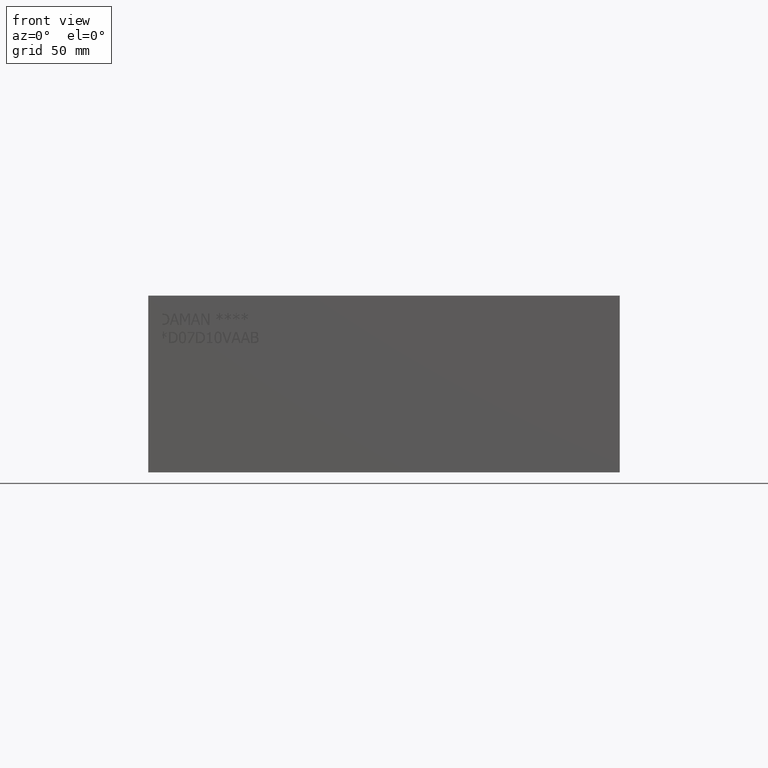
[diagram: clean part render]
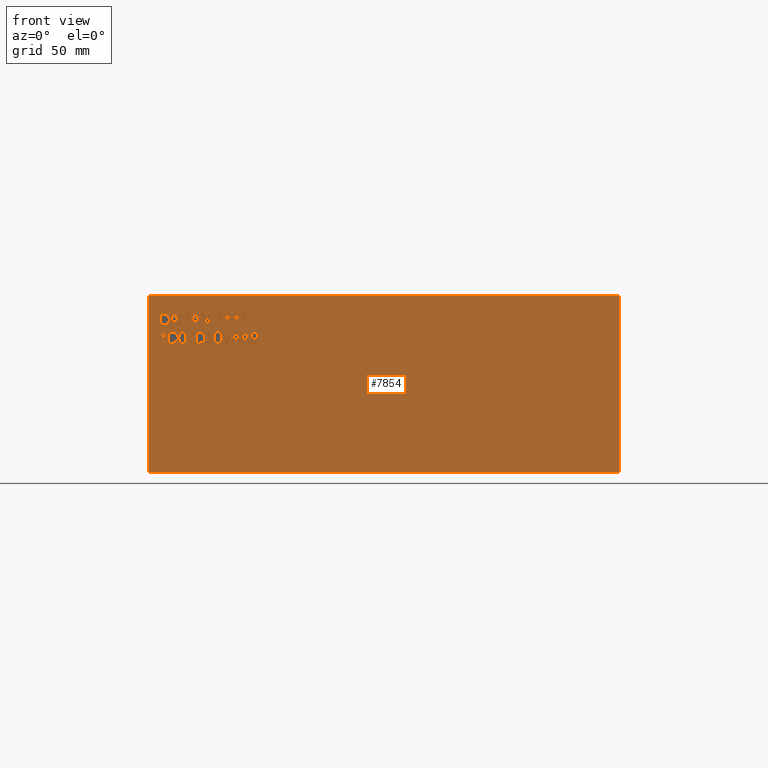
[diagram: same view with one face highlighted and labeled with its STEP entity id]
A machine part, front view. The second image highlights one B-rep face of the part: STEP entity #7854.
In plain terms, the highlighted planar face has unit normal (0, -1, 0).
Its self-contained STEP definition (entity closure, byte-faithful):
#304=FACE_BOUND('',#1140,.T.);
#305=FACE_BOUND('',#1141,.T.);
#306=FACE_BOUND('',#1142,.T.);
#307=FACE_BOUND('',#1143,.T.);
#308=FACE_BOUND('',#1144,.T.);
#309=FACE_BOUND('',#1145,.T.);
#310=FACE_BOUND('',#1146,.T.);
#311=FACE_BOUND('',#1147,.T.);
#312=FACE_BOUND('',#1148,.T.);
#313=FACE_BOUND('',#1149,.T.);
#314=FACE_BOUND('',#1150,.T.);
#315=FACE_BOUND('',#1151,.T.);
#316=FACE_BOUND('',#1152,.T.);
#317=FACE_BOUND('',#1153,.T.);
#318=FACE_BOUND('',#1154,.T.);
#319=FACE_BOUND('',#1155,.T.);
#320=FACE_BOUND('',#1156,.T.);
#321=FACE_BOUND('',#1157,.T.);
#322=FACE_BOUND('',#1158,.T.);
#395=B_SPLINE_CURVE_WITH_KNOTS('',2,(#10758,#10759,#10760,#10761),
 .UNSPECIFIED.,.F.,.F.,(3,1,3),(0.,1.,2.),.UNSPECIFIED.);
#397=B_SPLINE_CURVE_WITH_KNOTS('',2,(#10779,#10780,#10781,#10782),
 .UNSPECIFIED.,.F.,.F.,(3,1,3),(0.,1.,2.),.UNSPECIFIED.);
#399=B_SPLINE_CURVE_WITH_KNOTS('',2,(#10798,#10799,#10800,#10801),
 .UNSPECIFIED.,.F.,.F.,(3,1,3),(0.,1.,2.),.UNSPECIFIED.);
#401=B_SPLINE_CURVE_WITH_KNOTS('',2,(#10816,#10817,#10818,#10819),
 .UNSPECIFIED.,.F.,.F.,(3,1,3),(0.,1.,2.),.UNSPECIFIED.);
#419=B_SPLINE_CURVE_WITH_KNOTS('',2,(#11030,#11031,#11032,#11033),
 .UNSPECIFIED.,.F.,.F.,(3,1,3),(0.,1.,2.),.UNSPECIFIED.);
#421=B_SPLINE_CURVE_WITH_KNOTS('',2,(#11051,#11052,#11053,#11054),
 .UNSPECIFIED.,.F.,.F.,(3,1,3),(0.,1.,2.),.UNSPECIFIED.);
#423=B_SPLINE_CURVE_WITH_KNOTS('',2,(#11070,#11071,#11072,#11073),
 .UNSPECIFIED.,.F.,.F.,(3,1,3),(0.,1.,2.),.UNSPECIFIED.);
#425=B_SPLINE_CURVE_WITH_KNOTS('',2,(#11088,#11089,#11090,#11091),
 .UNSPECIFIED.,.F.,.F.,(3,1,3),(0.,1.,2.),.UNSPECIFIED.);
#435=B_SPLINE_CURVE_WITH_KNOTS('',2,(#11201,#11202,#11203,#11204),
 .UNSPECIFIED.,.F.,.F.,(3,1,3),(0.,1.,2.),.UNSPECIFIED.);
#437=B_SPLINE_CURVE_WITH_KNOTS('',2,(#11222,#11223,#11224,#11225),
 .UNSPECIFIED.,.F.,.F.,(3,1,3),(0.,1.,2.),.UNSPECIFIED.);
#439=B_SPLINE_CURVE_WITH_KNOTS('',2,(#11259,#11260,#11261,#11262),
 .UNSPECIFIED.,.F.,.F.,(3,1,3),(0.,1.,2.),.UNSPECIFIED.);
#441=B_SPLINE_CURVE_WITH_KNOTS('',2,(#11277,#11278,#11279,#11280),
 .UNSPECIFIED.,.F.,.F.,(3,1,3),(0.,1.,2.),.UNSPECIFIED.);
#451=B_SPLINE_CURVE_WITH_KNOTS('',2,(#11499,#11500,#11501,#11502),
 .UNSPECIFIED.,.F.,.F.,(3,1,3),(0.,1.,2.),.UNSPECIFIED.);
#453=B_SPLINE_CURVE_WITH_KNOTS('',2,(#11520,#11521,#11522,#11523),
 .UNSPECIFIED.,.F.,.F.,(3,1,3),(0.,1.,2.),.UNSPECIFIED.);
#455=B_SPLINE_CURVE_WITH_KNOTS('',2,(#11557,#11558,#11559,#11560),
 .UNSPECIFIED.,.F.,.F.,(3,1,3),(0.,1.,2.),.UNSPECIFIED.);
#457=B_SPLINE_CURVE_WITH_KNOTS('',2,(#11575,#11576,#11577,#11578),
 .UNSPECIFIED.,.F.,.F.,(3,1,3),(0.,1.,2.),.UNSPECIFIED.);
#459=B_SPLINE_CURVE_WITH_KNOTS('',2,(#11620,#11621,#11622,#11623),
 .UNSPECIFIED.,.F.,.F.,(3,1,3),(0.,1.,2.),.UNSPECIFIED.);
#477=B_SPLINE_CURVE_WITH_KNOTS('',2,(#11989,#11990,#11991,#11992),
 .UNSPECIFIED.,.F.,.F.,(3,1,3),(0.,1.,2.),.UNSPECIFIED.);
#479=B_SPLINE_CURVE_WITH_KNOTS('',2,(#12016,#12017,#12018,#12019),
 .UNSPECIFIED.,.F.,.F.,(3,1,3),(0.,1.,2.),.UNSPECIFIED.);
#481=B_SPLINE_CURVE_WITH_KNOTS('',2,(#12035,#12036,#12037,#12038),
 .UNSPECIFIED.,.F.,.F.,(3,1,3),(0.,1.,2.),.UNSPECIFIED.);
#483=B_SPLINE_CURVE_WITH_KNOTS('',2,(#12054,#12055,#12056,#12057),
 .UNSPECIFIED.,.F.,.F.,(3,1,3),(0.,1.,2.),.UNSPECIFIED.);
#485=B_SPLINE_CURVE_WITH_KNOTS('',2,(#12091,#12092,#12093,#12094),
 .UNSPECIFIED.,.F.,.F.,(3,1,3),(0.,1.,2.),.UNSPECIFIED.);
#487=B_SPLINE_CURVE_WITH_KNOTS('',2,(#12109,#12110,#12111,#12112),
 .UNSPECIFIED.,.F.,.F.,(3,1,3),(0.,1.,2.),.UNSPECIFIED.);
#489=B_SPLINE_CURVE_WITH_KNOTS('',2,(#12237,#12238,#12239,#12240),
 .UNSPECIFIED.,.F.,.F.,(3,1,3),(0.,1.,2.),.UNSPECIFIED.);
#490=B_SPLINE_CURVE_WITH_KNOTS('',2,(#12242,#12243,#12244,#12245),
 .UNSPECIFIED.,.F.,.F.,(3,1,3),(0.,1.,2.),.UNSPECIFIED.);
#491=B_SPLINE_CURVE_WITH_KNOTS('',2,(#12247,#12248,#12249,#12250),
 .UNSPECIFIED.,.F.,.F.,(3,1,3),(0.,1.,2.),.UNSPECIFIED.);
#492=B_SPLINE_CURVE_WITH_KNOTS('',2,(#12257,#12258,#12259,#12260),
 .UNSPECIFIED.,.F.,.F.,(3,1,3),(0.,1.,2.),.UNSPECIFIED.);
#718=FACE_OUTER_BOUND('',#1139,.T.);
#1139=EDGE_LOOP('',(#5637,#5638,#5639,#5640));
#1140=EDGE_LOOP('',(#5641,#5642,#5643,#5644,#5645,#5646,#5647));
#1141=EDGE_LOOP('',(#5648,#5649,#5650,#5651));
#1142=EDGE_LOOP('',(#5652,#5653,#5654,#5655,#5656,#5657,#5658));
#1143=EDGE_LOOP('',(#5659,#5660,#5661,#5662));
#1144=EDGE_LOOP('',(#5663,#5664,#5665,#5666,#5667,#5668,#5669));
#1145=EDGE_LOOP('',(#5670,#5671,#5672,#5673,#5674,#5675,#5676,#5677,#5678,
#5679,#5680,#5681,#5682,#5683,#5684,#5685,#5686,#5687));
#1146=EDGE_LOOP('',(#5688,#5689,#5690,#5691,#5692,#5693,#5694));
#1147=EDGE_LOOP('',(#5695,#5696,#5697,#5698,#5699,#5700,#5701,#5702,#5703,
#5704,#5705));
#1148=EDGE_LOOP('',(#5706,#5707,#5708,#5709,#5710,#5711,#5712,#5713,#5714,
#5715,#5716,#5717,#5718,#5719,#5720));
#1149=EDGE_LOOP('',(#5721,#5722,#5723,#5724,#5725,#5726,#5727,#5728,#5729,
#5730));
#1150=EDGE_LOOP('',(#5731,#5732,#5733,#5734,#5735,#5736,#5737,#5738,#5739,
#5740,#5741,#5742,#5743,#5744,#5745,#5746,#5747,#5748));
#1151=EDGE_LOOP('',(#5749,#5750,#5751,#5752,#5753,#5754,#5755,#5756,#5757,
#5758,#5759,#5760,#5761,#5762,#5763,#5764,#5765,#5766));
#1152=EDGE_LOOP('',(#5767,#5768,#5769,#5770,#5771,#5772,#5773,#5774,#5775,
#5776));
#1153=EDGE_LOOP('',(#5777,#5778,#5779,#5780,#5781,#5782,#5783,#5784));
#1154=EDGE_LOOP('',(#5785,#5786,#5787,#5788,#5789,#5790,#5791));
#1155=EDGE_LOOP('',(#5792,#5793,#5794,#5795,#5796,#5797,#5798,#5799));
#1156=EDGE_LOOP('',(#5800,#5801,#5802,#5803,#5804,#5805,#5806,#5807,#5808,
#5809,#5810,#5811,#5812));
#1157=EDGE_LOOP('',(#5813,#5814,#5815,#5816,#5817,#5818,#5819,#5820,#5821,
#5822,#5823,#5824,#5825,#5826,#5827,#5828,#5829,#5830));
#1158=EDGE_LOOP('',(#5831,#5832,#5833,#5834,#5835,#5836,#5837,#5838,#5839,
#5840,#5841,#5842,#5843,#5844,#5845,#5846,#5847,#5848));
#1477=LINE('',#10556,#2264);
#1481=LINE('',#10564,#2268);
#1484=LINE('',#10570,#2271);
#1487=LINE('',#10576,#2274);
#1490=LINE('',#10582,#2277);
#1493=LINE('',#10588,#2280);
#1496=LINE('',#10593,#2283);
#1510=LINE('',#10828,#2297);
#1514=LINE('',#10836,#2301);
#1517=LINE('',#10842,#2304);
#1520=LINE('',#10848,#2307);
#1523=LINE('',#10854,#2310);
#1526=LINE('',#10860,#2313);
#1529=LINE('',#10865,#2316);
#1559=LINE('',#11234,#2346);
#1562=LINE('',#11240,#2349);
#1565=LINE('',#11246,#2352);
#1569=LINE('',#11289,#2356);
#1573=LINE('',#11297,#2360);
#1576=LINE('',#11303,#2363);
#1579=LINE('',#11309,#2366);
#1582=LINE('',#11315,#2369);
#1585=LINE('',#11321,#2372);
#1588=LINE('',#11327,#2375);
#1591=LINE('',#11333,#2378);
#1594=LINE('',#11339,#2381);
#1597=LINE('',#11345,#2384);
#1600=LINE('',#11351,#2387);
#1603=LINE('',#11357,#2390);
#1606=LINE('',#11363,#2393);
#1609=LINE('',#11369,#2396);
#1612=LINE('',#11375,#2399);
#1615=LINE('',#11381,#2402);
#1618=LINE('',#11387,#2405);
#1621=LINE('',#11392,#2408);
#1639=LINE('',#11532,#2426);
#1642=LINE('',#11538,#2429);
#1645=LINE('',#11544,#2432);
#1649=LINE('',#11587,#2436);
#1653=LINE('',#11595,#2440);
#1656=LINE('',#11601,#2443);
#1659=LINE('',#11607,#2446);
#1663=LINE('',#11632,#2450);
#1666=LINE('',#11638,#2453);
#1669=LINE('',#11644,#2456);
#1672=LINE('',#11650,#2459);
#1675=LINE('',#11656,#2462);
#1678=LINE('',#11661,#2465);
#1692=LINE('',#11690,#2479);
#1693=LINE('',#11694,#2480);
#1697=LINE('',#11702,#2484);
#1700=LINE('',#11708,#2487);
#1703=LINE('',#11714,#2490);
#1706=LINE('',#11720,#2493);
#1709=LINE('',#11725,#2496);
#1711=LINE('',#11729,#2498);
#1723=LINE('',#11754,#2510);
#1727=LINE('',#11762,#2514);
#1730=LINE('',#11768,#2517);
#1733=LINE('',#11773,#2520);
#1735=LINE('',#11777,#2522);
#1738=LINE('',#11783,#2525);
#1741=LINE('',#11788,#2528);
#1771=LINE('',#12003,#2558);
#1777=LINE('',#12066,#2564);
#1780=LINE('',#12072,#2567);
#1783=LINE('',#12078,#2570);
#1787=LINE('',#12121,#2574);
#1788=LINE('',#12123,#2575);
#1789=LINE('',#12125,#2576);
#1790=LINE('',#12126,#2577);
#1791=LINE('',#12129,#2578);
#1792=LINE('',#12131,#2579);
#1793=LINE('',#12133,#2580);
#1794=LINE('',#12135,#2581);
#1795=LINE('',#12137,#2582);
#1796=LINE('',#12139,#2583);
#1797=LINE('',#12141,#2584);
#1798=LINE('',#12143,#2585);
#1799=LINE('',#12145,#2586);
#1800=LINE('',#12147,#2587);
#1801=LINE('',#12149,#2588);
#1802=LINE('',#12151,#2589);
#1803=LINE('',#12153,#2590);
#1804=LINE('',#12155,#2591);
#1805=LINE('',#12157,#2592);
#1806=LINE('',#12159,#2593);
#1807=LINE('',#12161,#2594);
#1808=LINE('',#12162,#2595);
#1809=LINE('',#12165,#2596);
#1810=LINE('',#12167,#2597);
#1811=LINE('',#12169,#2598);
#1812=LINE('',#12171,#2599);
#1813=LINE('',#12173,#2600);
#1814=LINE('',#12175,#2601);
#1815=LINE('',#12177,#2602);
#1816=LINE('',#12179,#2603);
#1817=LINE('',#12181,#2604);
#1818=LINE('',#12183,#2605);
#1819=LINE('',#12185,#2606);
#1820=LINE('',#12187,#2607);
#1821=LINE('',#12189,#2608);
#1822=LINE('',#12191,#2609);
#1823=LINE('',#12193,#2610);
#1824=LINE('',#12195,#2611);
#1825=LINE('',#12197,#2612);
#1826=LINE('',#12198,#2613);
#1827=LINE('',#12201,#2614);
#1828=LINE('',#12203,#2615);
#1829=LINE('',#12205,#2616);
#1830=LINE('',#12207,#2617);
#1831=LINE('',#12209,#2618);
#1832=LINE('',#12211,#2619);
#1833=LINE('',#12213,#2620);
#1834=LINE('',#12215,#2621);
#1835=LINE('',#12217,#2622);
#1836=LINE('',#12218,#2623);
#1837=LINE('',#12221,#2624);
#1838=LINE('',#12223,#2625);
#1839=LINE('',#12225,#2626);
#1840=LINE('',#12227,#2627);
#1841=LINE('',#12229,#2628);
#1842=LINE('',#12231,#2629);
#1843=LINE('',#12233,#2630);
#1844=LINE('',#12234,#2631);
#1845=LINE('',#12252,#2632);
#1846=LINE('',#12254,#2633);
#1847=LINE('',#12256,#2634);
#1848=LINE('',#12263,#2635);
#1849=LINE('',#12265,#2636);
#1850=LINE('',#12267,#2637);
#1851=LINE('',#12269,#2638);
#1852=LINE('',#12271,#2639);
#1853=LINE('',#12273,#2640);
#1854=LINE('',#12275,#2641);
#1855=LINE('',#12276,#2642);
#1856=LINE('',#12279,#2643);
#1857=LINE('',#12281,#2644);
#1858=LINE('',#12283,#2645);
#1859=LINE('',#12285,#2646);
#1860=LINE('',#12287,#2647);
#1861=LINE('',#12289,#2648);
#1862=LINE('',#12291,#2649);
#1863=LINE('',#12293,#2650);
#1864=LINE('',#12295,#2651);
#1865=LINE('',#12297,#2652);
#1866=LINE('',#12299,#2653);
#1867=LINE('',#12301,#2654);
#1868=LINE('',#12302,#2655);
#1869=LINE('',#12305,#2656);
#1870=LINE('',#12307,#2657);
#1871=LINE('',#12309,#2658);
#1872=LINE('',#12311,#2659);
#1873=LINE('',#12313,#2660);
#1874=LINE('',#12315,#2661);
#1875=LINE('',#12317,#2662);
#1876=LINE('',#12319,#2663);
#1877=LINE('',#12321,#2664);
#1878=LINE('',#12323,#2665);
#1879=LINE('',#12325,#2666);
#1880=LINE('',#12327,#2667);
#1881=LINE('',#12329,#2668);
#1882=LINE('',#12331,#2669);
#1883=LINE('',#12333,#2670);
#1884=LINE('',#12335,#2671);
#1885=LINE('',#12337,#2672);
#1886=LINE('',#12338,#2673);
#1887=LINE('',#12341,#2674);
#1888=LINE('',#12343,#2675);
#1889=LINE('',#12345,#2676);
#1890=LINE('',#12347,#2677);
#1891=LINE('',#12349,#2678);
#1892=LINE('',#12351,#2679);
#1893=LINE('',#12353,#2680);
#1894=LINE('',#12355,#2681);
#1895=LINE('',#12357,#2682);
#1896=LINE('',#12359,#2683);
#1897=LINE('',#12361,#2684);
#1898=LINE('',#12363,#2685);
#1899=LINE('',#12365,#2686);
#1900=LINE('',#12367,#2687);
#1901=LINE('',#12369,#2688);
#1902=LINE('',#12371,#2689);
#1903=LINE('',#12373,#2690);
#1904=LINE('',#12374,#2691);
#2264=VECTOR('',#8679,10.);
#2268=VECTOR('',#8685,10.);
#2271=VECTOR('',#8690,10.);
#2274=VECTOR('',#8695,10.);
#2277=VECTOR('',#8700,10.);
#2280=VECTOR('',#8705,10.);
#2283=VECTOR('',#8710,10.);
#2297=VECTOR('',#8730,10.);
#2301=VECTOR('',#8736,10.);
#2304=VECTOR('',#8741,10.);
#2307=VECTOR('',#8746,10.);
#2310=VECTOR('',#8751,10.);
#2313=VECTOR('',#8756,10.);
#2316=VECTOR('',#8761,10.);
#2346=VECTOR('',#8803,10.);
#2349=VECTOR('',#8808,10.);
#2352=VECTOR('',#8813,10.);
#2356=VECTOR('',#8821,10.);
#2360=VECTOR('',#8827,10.);
#2363=VECTOR('',#8832,10.);
#2366=VECTOR('',#8837,10.);
#2369=VECTOR('',#8842,10.);
#2372=VECTOR('',#8847,10.);
#2375=VECTOR('',#8852,10.);
#2378=VECTOR('',#8857,10.);
#2381=VECTOR('',#8862,10.);
#2384=VECTOR('',#8867,10.);
#2387=VECTOR('',#8872,10.);
#2390=VECTOR('',#8877,10.);
#2393=VECTOR('',#8882,10.);
#2396=VECTOR('',#8887,10.);
#2399=VECTOR('',#8892,10.);
#2402=VECTOR('',#8897,10.);
#2405=VECTOR('',#8902,10.);
#2408=VECTOR('',#8907,10.);
#2426=VECTOR('',#8935,10.);
#2429=VECTOR('',#8940,10.);
#2432=VECTOR('',#8945,10.);
#2436=VECTOR('',#8953,10.);
#2440=VECTOR('',#8959,10.);
#2443=VECTOR('',#8964,10.);
#2446=VECTOR('',#8969,10.);
#2450=VECTOR('',#8975,10.);
#2453=VECTOR('',#8980,10.);
#2456=VECTOR('',#8985,10.);
#2459=VECTOR('',#8990,10.);
#2462=VECTOR('',#8995,10.);
#2465=VECTOR('',#9000,10.);
#2479=VECTOR('',#9024,10.);
#2480=VECTOR('',#9027,10.);
#2484=VECTOR('',#9033,10.);
#2487=VECTOR('',#9038,10.);
#2490=VECTOR('',#9043,10.);
#2493=VECTOR('',#9048,10.);
#2496=VECTOR('',#9053,10.);
#2498=VECTOR('',#9057,10.);
#2510=VECTOR('',#9077,10.);
#2514=VECTOR('',#9083,10.);
#2517=VECTOR('',#9088,10.);
#2520=VECTOR('',#9093,10.);
#2522=VECTOR('',#9097,10.);
#2525=VECTOR('',#9102,10.);
#2528=VECTOR('',#9107,10.);
#2558=VECTOR('',#9153,10.);
#2564=VECTOR('',#9161,10.);
#2567=VECTOR('',#9166,10.);
#2570=VECTOR('',#9171,10.);
#2574=VECTOR('',#9179,10.);
#2575=VECTOR('',#9180,10.);
#2576=VECTOR('',#9181,10.);
#2577=VECTOR('',#9182,10.);
#2578=VECTOR('',#9183,10.);
#2579=VECTOR('',#9184,10.);
#2580=VECTOR('',#9185,10.);
#2581=VECTOR('',#9186,10.);
#2582=VECTOR('',#9187,10.);
#2583=VECTOR('',#9188,10.);
#2584=VECTOR('',#9189,10.);
#2585=VECTOR('',#9190,10.);
#2586=VECTOR('',#9191,10.);
#2587=VECTOR('',#9192,10.);
#2588=VECTOR('',#9193,10.);
#2589=VECTOR('',#9194,10.);
#2590=VECTOR('',#9195,10.);
#2591=VECTOR('',#9196,10.);
#2592=VECTOR('',#9197,10.);
#2593=VECTOR('',#9198,10.);
#2594=VECTOR('',#9199,10.);
#2595=VECTOR('',#9200,10.);
#2596=VECTOR('',#9201,10.);
#2597=VECTOR('',#9202,10.);
#2598=VECTOR('',#9203,10.);
#2599=VECTOR('',#9204,10.);
#2600=VECTOR('',#9205,10.);
#2601=VECTOR('',#9206,10.);
#2602=VECTOR('',#9207,10.);
#2603=VECTOR('',#9208,10.);
#2604=VECTOR('',#9209,10.);
#2605=VECTOR('',#9210,10.);
#2606=VECTOR('',#9211,10.);
#2607=VECTOR('',#9212,10.);
#2608=VECTOR('',#9213,10.);
#2609=VECTOR('',#9214,10.);
#2610=VECTOR('',#9215,10.);
#2611=VECTOR('',#9216,10.);
#2612=VECTOR('',#9217,10.);
#2613=VECTOR('',#9218,10.);
#2614=VECTOR('',#9219,10.);
#2615=VECTOR('',#9220,10.);
#2616=VECTOR('',#9221,10.);
#2617=VECTOR('',#9222,10.);
#2618=VECTOR('',#9223,10.);
#2619=VECTOR('',#9224,10.);
#2620=VECTOR('',#9225,10.);
#2621=VECTOR('',#9226,10.);
#2622=VECTOR('',#9227,10.);
#2623=VECTOR('',#9228,10.);
#2624=VECTOR('',#9229,10.);
#2625=VECTOR('',#9230,10.);
#2626=VECTOR('',#9231,10.);
#2627=VECTOR('',#9232,10.);
#2628=VECTOR('',#9233,10.);
#2629=VECTOR('',#9234,10.);
#2630=VECTOR('',#9235,10.);
#2631=VECTOR('',#9236,10.);
#2632=VECTOR('',#9237,10.);
#2633=VECTOR('',#9238,10.);
#2634=VECTOR('',#9239,10.);
#2635=VECTOR('',#9240,10.);
#2636=VECTOR('',#9241,10.);
#2637=VECTOR('',#9242,10.);
#2638=VECTOR('',#9243,10.);
#2639=VECTOR('',#9244,10.);
#2640=VECTOR('',#9245,10.);
#2641=VECTOR('',#9246,10.);
#2642=VECTOR('',#9247,10.);
#2643=VECTOR('',#9248,10.);
#2644=VECTOR('',#9249,10.);
#2645=VECTOR('',#9250,10.);
#2646=VECTOR('',#9251,10.);
#2647=VECTOR('',#9252,10.);
#2648=VECTOR('',#9253,10.);
#2649=VECTOR('',#9254,10.);
#2650=VECTOR('',#9255,10.);
#2651=VECTOR('',#9256,10.);
#2652=VECTOR('',#9257,10.);
#2653=VECTOR('',#9258,10.);
#2654=VECTOR('',#9259,10.);
#2655=VECTOR('',#9260,10.);
#2656=VECTOR('',#9261,10.);
#2657=VECTOR('',#9262,10.);
#2658=VECTOR('',#9263,10.);
#2659=VECTOR('',#9264,10.);
#2660=VECTOR('',#9265,10.);
#2661=VECTOR('',#9266,10.);
#2662=VECTOR('',#9267,10.);
#2663=VECTOR('',#9268,10.);
#2664=VECTOR('',#9269,10.);
#2665=VECTOR('',#9270,10.);
#2666=VECTOR('',#9271,10.);
#2667=VECTOR('',#9272,10.);
#2668=VECTOR('',#9273,10.);
#2669=VECTOR('',#9274,10.);
#2670=VECTOR('',#9275,10.);
#2671=VECTOR('',#9276,10.);
#2672=VECTOR('',#9277,10.);
#2673=VECTOR('',#9278,10.);
#2674=VECTOR('',#9279,10.);
#2675=VECTOR('',#9280,10.);
#2676=VECTOR('',#9281,10.);
#2677=VECTOR('',#9282,10.);
#2678=VECTOR('',#9283,10.);
#2679=VECTOR('',#9284,10.);
#2680=VECTOR('',#9285,10.);
#2681=VECTOR('',#9286,10.);
#2682=VECTOR('',#9287,10.);
#2683=VECTOR('',#9288,10.);
#2684=VECTOR('',#9289,10.);
#2685=VECTOR('',#9290,10.);
#2686=VECTOR('',#9291,10.);
#2687=VECTOR('',#9292,10.);
#2688=VECTOR('',#9293,10.);
#2689=VECTOR('',#9294,10.);
#2690=VECTOR('',#9295,10.);
#2691=VECTOR('',#9296,10.);
#3051=VERTEX_POINT('',#10554);
#3052=VERTEX_POINT('',#10555);
#3055=VERTEX_POINT('',#10563);
#3057=VERTEX_POINT('',#10569);
#3059=VERTEX_POINT('',#10575);
#3061=VERTEX_POINT('',#10581);
#3063=VERTEX_POINT('',#10587);
#3081=VERTEX_POINT('',#10756);
#3082=VERTEX_POINT('',#10757);
#3085=VERTEX_POINT('',#10778);
#3087=VERTEX_POINT('',#10797);
#3089=VERTEX_POINT('',#10826);
#3090=VERTEX_POINT('',#10827);
#3093=VERTEX_POINT('',#10835);
#3095=VERTEX_POINT('',#10841);
#3097=VERTEX_POINT('',#10847);
#3099=VERTEX_POINT('',#10853);
#3101=VERTEX_POINT('',#10859);
#3119=VERTEX_POINT('',#11028);
#3120=VERTEX_POINT('',#11029);
#3123=VERTEX_POINT('',#11050);
#3125=VERTEX_POINT('',#11069);
#3141=VERTEX_POINT('',#11199);
#3142=VERTEX_POINT('',#11200);
#3145=VERTEX_POINT('',#11221);
#3147=VERTEX_POINT('',#11233);
#3149=VERTEX_POINT('',#11239);
#3151=VERTEX_POINT('',#11245);
#3153=VERTEX_POINT('',#11258);
#3155=VERTEX_POINT('',#11287);
#3156=VERTEX_POINT('',#11288);
#3159=VERTEX_POINT('',#11296);
#3161=VERTEX_POINT('',#11302);
#3163=VERTEX_POINT('',#11308);
#3165=VERTEX_POINT('',#11314);
#3167=VERTEX_POINT('',#11320);
#3169=VERTEX_POINT('',#11326);
#3171=VERTEX_POINT('',#11332);
#3173=VERTEX_POINT('',#11338);
#3175=VERTEX_POINT('',#11344);
#3177=VERTEX_POINT('',#11350);
#3179=VERTEX_POINT('',#11356);
#3181=VERTEX_POINT('',#11362);
#3183=VERTEX_POINT('',#11368);
#3185=VERTEX_POINT('',#11374);
#3187=VERTEX_POINT('',#11380);
#3189=VERTEX_POINT('',#11386);
#3205=VERTEX_POINT('',#11497);
#3206=VERTEX_POINT('',#11498);
#3209=VERTEX_POINT('',#11519);
#3211=VERTEX_POINT('',#11531);
#3213=VERTEX_POINT('',#11537);
#3215=VERTEX_POINT('',#11543);
#3217=VERTEX_POINT('',#11556);
#3219=VERTEX_POINT('',#11585);
#3220=VERTEX_POINT('',#11586);
#3223=VERTEX_POINT('',#11594);
#3225=VERTEX_POINT('',#11600);
#3227=VERTEX_POINT('',#11606);
#3229=VERTEX_POINT('',#11619);
#3231=VERTEX_POINT('',#11631);
#3233=VERTEX_POINT('',#11637);
#3235=VERTEX_POINT('',#11643);
#3237=VERTEX_POINT('',#11649);
#3239=VERTEX_POINT('',#11655);
#3247=VERTEX_POINT('',#11683);
#3250=VERTEX_POINT('',#11688);
#3251=VERTEX_POINT('',#11692);
#3252=VERTEX_POINT('',#11693);
#3255=VERTEX_POINT('',#11701);
#3257=VERTEX_POINT('',#11707);
#3259=VERTEX_POINT('',#11713);
#3261=VERTEX_POINT('',#11719);
#3263=VERTEX_POINT('',#11728);
#3271=VERTEX_POINT('',#11752);
#3272=VERTEX_POINT('',#11753);
#3275=VERTEX_POINT('',#11761);
#3277=VERTEX_POINT('',#11767);
#3279=VERTEX_POINT('',#11776);
#3281=VERTEX_POINT('',#11782);
#3311=VERTEX_POINT('',#11987);
#3312=VERTEX_POINT('',#11988);
#3315=VERTEX_POINT('',#12002);
#3317=VERTEX_POINT('',#12015);
#3319=VERTEX_POINT('',#12034);
#3321=VERTEX_POINT('',#12053);
#3323=VERTEX_POINT('',#12065);
#3325=VERTEX_POINT('',#12071);
#3327=VERTEX_POINT('',#12077);
#3329=VERTEX_POINT('',#12090);
#3331=VERTEX_POINT('',#12119);
#3332=VERTEX_POINT('',#12120);
#3333=VERTEX_POINT('',#12122);
#3334=VERTEX_POINT('',#12124);
#3335=VERTEX_POINT('',#12127);
#3336=VERTEX_POINT('',#12128);
#3337=VERTEX_POINT('',#12130);
#3338=VERTEX_POINT('',#12132);
#3339=VERTEX_POINT('',#12134);
#3340=VERTEX_POINT('',#12136);
#3341=VERTEX_POINT('',#12138);
#3342=VERTEX_POINT('',#12140);
#3343=VERTEX_POINT('',#12142);
#3344=VERTEX_POINT('',#12144);
#3345=VERTEX_POINT('',#12146);
#3346=VERTEX_POINT('',#12148);
#3347=VERTEX_POINT('',#12150);
#3348=VERTEX_POINT('',#12152);
#3349=VERTEX_POINT('',#12154);
#3350=VERTEX_POINT('',#12156);
#3351=VERTEX_POINT('',#12158);
#3352=VERTEX_POINT('',#12160);
#3353=VERTEX_POINT('',#12163);
#3354=VERTEX_POINT('',#12164);
#3355=VERTEX_POINT('',#12166);
#3356=VERTEX_POINT('',#12168);
#3357=VERTEX_POINT('',#12170);
#3358=VERTEX_POINT('',#12172);
#3359=VERTEX_POINT('',#12174);
#3360=VERTEX_POINT('',#12176);
#3361=VERTEX_POINT('',#12178);
#3362=VERTEX_POINT('',#12180);
#3363=VERTEX_POINT('',#12182);
#3364=VERTEX_POINT('',#12184);
#3365=VERTEX_POINT('',#12186);
#3366=VERTEX_POINT('',#12188);
#3367=VERTEX_POINT('',#12190);
#3368=VERTEX_POINT('',#12192);
#3369=VERTEX_POINT('',#12194);
#3370=VERTEX_POINT('',#12196);
#3371=VERTEX_POINT('',#12199);
#3372=VERTEX_POINT('',#12200);
#3373=VERTEX_POINT('',#12202);
#3374=VERTEX_POINT('',#12204);
#3375=VERTEX_POINT('',#12206);
#3376=VERTEX_POINT('',#12208);
#3377=VERTEX_POINT('',#12210);
#3378=VERTEX_POINT('',#12212);
#3379=VERTEX_POINT('',#12214);
#3380=VERTEX_POINT('',#12216);
#3381=VERTEX_POINT('',#12219);
#3382=VERTEX_POINT('',#12220);
#3383=VERTEX_POINT('',#12222);
#3384=VERTEX_POINT('',#12224);
#3385=VERTEX_POINT('',#12226);
#3386=VERTEX_POINT('',#12228);
#3387=VERTEX_POINT('',#12230);
#3388=VERTEX_POINT('',#12232);
#3389=VERTEX_POINT('',#12235);
#3390=VERTEX_POINT('',#12236);
#3391=VERTEX_POINT('',#12241);
#3392=VERTEX_POINT('',#12246);
#3393=VERTEX_POINT('',#12251);
#3394=VERTEX_POINT('',#12253);
#3395=VERTEX_POINT('',#12255);
#3396=VERTEX_POINT('',#12261);
#3397=VERTEX_POINT('',#12262);
#3398=VERTEX_POINT('',#12264);
#3399=VERTEX_POINT('',#12266);
#3400=VERTEX_POINT('',#12268);
#3401=VERTEX_POINT('',#12270);
#3402=VERTEX_POINT('',#12272);
#3403=VERTEX_POINT('',#12274);
#3404=VERTEX_POINT('',#12277);
#3405=VERTEX_POINT('',#12278);
#3406=VERTEX_POINT('',#12280);
#3407=VERTEX_POINT('',#12282);
#3408=VERTEX_POINT('',#12284);
#3409=VERTEX_POINT('',#12286);
#3410=VERTEX_POINT('',#12288);
#3411=VERTEX_POINT('',#12290);
#3412=VERTEX_POINT('',#12292);
#3413=VERTEX_POINT('',#12294);
#3414=VERTEX_POINT('',#12296);
#3415=VERTEX_POINT('',#12298);
#3416=VERTEX_POINT('',#12300);
#3417=VERTEX_POINT('',#12303);
#3418=VERTEX_POINT('',#12304);
#3419=VERTEX_POINT('',#12306);
#3420=VERTEX_POINT('',#12308);
#3421=VERTEX_POINT('',#12310);
#3422=VERTEX_POINT('',#12312);
#3423=VERTEX_POINT('',#12314);
#3424=VERTEX_POINT('',#12316);
#3425=VERTEX_POINT('',#12318);
#3426=VERTEX_POINT('',#12320);
#3427=VERTEX_POINT('',#12322);
#3428=VERTEX_POINT('',#12324);
#3429=VERTEX_POINT('',#12326);
#3430=VERTEX_POINT('',#12328);
#3431=VERTEX_POINT('',#12330);
#3432=VERTEX_POINT('',#12332);
#3433=VERTEX_POINT('',#12334);
#3434=VERTEX_POINT('',#12336);
#3435=VERTEX_POINT('',#12339);
#3436=VERTEX_POINT('',#12340);
#3437=VERTEX_POINT('',#12342);
#3438=VERTEX_POINT('',#12344);
#3439=VERTEX_POINT('',#12346);
#3440=VERTEX_POINT('',#12348);
#3441=VERTEX_POINT('',#12350);
#3442=VERTEX_POINT('',#12352);
#3443=VERTEX_POINT('',#12354);
#3444=VERTEX_POINT('',#12356);
#3445=VERTEX_POINT('',#12358);
#3446=VERTEX_POINT('',#12360);
#3447=VERTEX_POINT('',#12362);
#3448=VERTEX_POINT('',#12364);
#3449=VERTEX_POINT('',#12366);
#3450=VERTEX_POINT('',#12368);
#3451=VERTEX_POINT('',#12370);
#3452=VERTEX_POINT('',#12372);
#3830=EDGE_CURVE('',#3051,#3052,#1477,.T.);
#3834=EDGE_CURVE('',#3055,#3051,#1481,.T.);
#3837=EDGE_CURVE('',#3057,#3055,#1484,.T.);
#3840=EDGE_CURVE('',#3059,#3057,#1487,.T.);
#3843=EDGE_CURVE('',#3061,#3059,#1490,.T.);
#3846=EDGE_CURVE('',#3063,#3061,#1493,.T.);
#3849=EDGE_CURVE('',#3052,#3063,#1496,.T.);
#3875=EDGE_CURVE('',#3081,#3082,#395,.T.);
#3879=EDGE_CURVE('',#3085,#3081,#397,.T.);
#3882=EDGE_CURVE('',#3087,#3085,#399,.T.);
#3885=EDGE_CURVE('',#3082,#3087,#401,.T.);
#3887=EDGE_CURVE('',#3089,#3090,#1510,.T.);
#3891=EDGE_CURVE('',#3093,#3089,#1514,.T.);
#3894=EDGE_CURVE('',#3095,#3093,#1517,.T.);
#3897=EDGE_CURVE('',#3097,#3095,#1520,.T.);
#3900=EDGE_CURVE('',#3099,#3097,#1523,.T.);
#3903=EDGE_CURVE('',#3101,#3099,#1526,.T.);
#3906=EDGE_CURVE('',#3090,#3101,#1529,.T.);
#3932=EDGE_CURVE('',#3119,#3120,#419,.T.);
#3936=EDGE_CURVE('',#3123,#3119,#421,.T.);
#3939=EDGE_CURVE('',#3125,#3123,#423,.T.);
#3942=EDGE_CURVE('',#3120,#3125,#425,.T.);
#3965=EDGE_CURVE('',#3141,#3142,#435,.T.);
#3969=EDGE_CURVE('',#3145,#3141,#437,.T.);
#3972=EDGE_CURVE('',#3147,#3145,#1559,.T.);
#3975=EDGE_CURVE('',#3149,#3147,#1562,.T.);
#3978=EDGE_CURVE('',#3151,#3149,#1565,.T.);
#3981=EDGE_CURVE('',#3153,#3151,#439,.T.);
#3984=EDGE_CURVE('',#3142,#3153,#441,.T.);
#3986=EDGE_CURVE('',#3155,#3156,#1569,.T.);
#3990=EDGE_CURVE('',#3159,#3155,#1573,.T.);
#3993=EDGE_CURVE('',#3161,#3159,#1576,.T.);
#3996=EDGE_CURVE('',#3163,#3161,#1579,.T.);
#3999=EDGE_CURVE('',#3165,#3163,#1582,.T.);
#4002=EDGE_CURVE('',#3167,#3165,#1585,.T.);
#4005=EDGE_CURVE('',#3169,#3167,#1588,.T.);
#4008=EDGE_CURVE('',#3171,#3169,#1591,.T.);
#4011=EDGE_CURVE('',#3173,#3171,#1594,.T.);
#4014=EDGE_CURVE('',#3175,#3173,#1597,.T.);
#4017=EDGE_CURVE('',#3177,#3175,#1600,.T.);
#4020=EDGE_CURVE('',#3179,#3177,#1603,.T.);
#4023=EDGE_CURVE('',#3181,#3179,#1606,.T.);
#4026=EDGE_CURVE('',#3183,#3181,#1609,.T.);
#4029=EDGE_CURVE('',#3185,#3183,#1612,.T.);
#4032=EDGE_CURVE('',#3187,#3185,#1615,.T.);
#4035=EDGE_CURVE('',#3189,#3187,#1618,.T.);
#4038=EDGE_CURVE('',#3156,#3189,#1621,.T.);
#4061=EDGE_CURVE('',#3205,#3206,#451,.T.);
#4065=EDGE_CURVE('',#3209,#3205,#453,.T.);
#4068=EDGE_CURVE('',#3211,#3209,#1639,.T.);
#4071=EDGE_CURVE('',#3213,#3211,#1642,.T.);
#4074=EDGE_CURVE('',#3215,#3213,#1645,.T.);
#4077=EDGE_CURVE('',#3217,#3215,#455,.T.);
#4080=EDGE_CURVE('',#3206,#3217,#457,.T.);
#4082=EDGE_CURVE('',#3219,#3220,#1649,.T.);
#4086=EDGE_CURVE('',#3223,#3219,#1653,.T.);
#4089=EDGE_CURVE('',#3225,#3223,#1656,.T.);
#4092=EDGE_CURVE('',#3227,#3225,#1659,.T.);
#4095=EDGE_CURVE('',#3229,#3227,#459,.T.);
#4098=EDGE_CURVE('',#3231,#3229,#1663,.T.);
#4101=EDGE_CURVE('',#3233,#3231,#1666,.T.);
#4104=EDGE_CURVE('',#3235,#3233,#1669,.T.);
#4107=EDGE_CURVE('',#3237,#3235,#1672,.T.);
#4110=EDGE_CURVE('',#3239,#3237,#1675,.T.);
#4113=EDGE_CURVE('',#3220,#3239,#1678,.T.);
#4127=EDGE_CURVE('',#3247,#3250,#1692,.T.);
#4128=EDGE_CURVE('',#3251,#3252,#1693,.T.);
#4132=EDGE_CURVE('',#3255,#3251,#1697,.T.);
#4135=EDGE_CURVE('',#3257,#3255,#1700,.T.);
#4138=EDGE_CURVE('',#3259,#3257,#1703,.T.);
#4141=EDGE_CURVE('',#3261,#3259,#1706,.T.);
#4144=EDGE_CURVE('',#3250,#3261,#1709,.T.);
#4146=EDGE_CURVE('',#3252,#3263,#1711,.T.);
#4158=EDGE_CURVE('',#3271,#3272,#1723,.T.);
#4162=EDGE_CURVE('',#3275,#3271,#1727,.T.);
#4165=EDGE_CURVE('',#3277,#3275,#1730,.T.);
#4168=EDGE_CURVE('',#3263,#3277,#1733,.T.);
#4170=EDGE_CURVE('',#3279,#3247,#1735,.T.);
#4173=EDGE_CURVE('',#3281,#3279,#1738,.T.);
#4176=EDGE_CURVE('',#3272,#3281,#1741,.T.);
#4220=EDGE_CURVE('',#3311,#3312,#477,.T.);
#4224=EDGE_CURVE('',#3315,#3311,#1771,.T.);
#4227=EDGE_CURVE('',#3317,#3315,#479,.T.);
#4230=EDGE_CURVE('',#3319,#3317,#481,.T.);
#4233=EDGE_CURVE('',#3321,#3319,#483,.T.);
#4236=EDGE_CURVE('',#3323,#3321,#1777,.T.);
#4239=EDGE_CURVE('',#3325,#3323,#1780,.T.);
#4242=EDGE_CURVE('',#3327,#3325,#1783,.T.);
#4245=EDGE_CURVE('',#3329,#3327,#485,.T.);
#4248=EDGE_CURVE('',#3312,#3329,#487,.T.);
#4250=EDGE_CURVE('',#3331,#3332,#1787,.T.);
#4251=EDGE_CURVE('',#3332,#3333,#1788,.T.);
#4252=EDGE_CURVE('',#3334,#3333,#1789,.T.);
#4253=EDGE_CURVE('',#3331,#3334,#1790,.T.);
#4254=EDGE_CURVE('',#3335,#3336,#1791,.T.);
#4255=EDGE_CURVE('',#3336,#3337,#1792,.T.);
#4256=EDGE_CURVE('',#3337,#3338,#1793,.T.);
#4257=EDGE_CURVE('',#3338,#3339,#1794,.T.);
#4258=EDGE_CURVE('',#3339,#3340,#1795,.T.);
#4259=EDGE_CURVE('',#3340,#3341,#1796,.T.);
#4260=EDGE_CURVE('',#3341,#3342,#1797,.T.);
#4261=EDGE_CURVE('',#3342,#3343,#1798,.T.);
#4262=EDGE_CURVE('',#3343,#3344,#1799,.T.);
#4263=EDGE_CURVE('',#3344,#3345,#1800,.T.);
#4264=EDGE_CURVE('',#3345,#3346,#1801,.T.);
#4265=EDGE_CURVE('',#3346,#3347,#1802,.T.);
#4266=EDGE_CURVE('',#3347,#3348,#1803,.T.);
#4267=EDGE_CURVE('',#3348,#3349,#1804,.T.);
#4268=EDGE_CURVE('',#3349,#3350,#1805,.T.);
#4269=EDGE_CURVE('',#3350,#3351,#1806,.T.);
#4270=EDGE_CURVE('',#3351,#3352,#1807,.T.);
#4271=EDGE_CURVE('',#3352,#3335,#1808,.T.);
#4272=EDGE_CURVE('',#3353,#3354,#1809,.T.);
#4273=EDGE_CURVE('',#3354,#3355,#1810,.T.);
#4274=EDGE_CURVE('',#3355,#3356,#1811,.T.);
#4275=EDGE_CURVE('',#3356,#3357,#1812,.T.);
#4276=EDGE_CURVE('',#3357,#3358,#1813,.T.);
#4277=EDGE_CURVE('',#3358,#3359,#1814,.T.);
#4278=EDGE_CURVE('',#3359,#3360,#1815,.T.);
#4279=EDGE_CURVE('',#3360,#3361,#1816,.T.);
#4280=EDGE_CURVE('',#3361,#3362,#1817,.T.);
#4281=EDGE_CURVE('',#3362,#3363,#1818,.T.);
#4282=EDGE_CURVE('',#3363,#3364,#1819,.T.);
#4283=EDGE_CURVE('',#3364,#3365,#1820,.T.);
#4284=EDGE_CURVE('',#3365,#3366,#1821,.T.);
#4285=EDGE_CURVE('',#3366,#3367,#1822,.T.);
#4286=EDGE_CURVE('',#3367,#3368,#1823,.T.);
#4287=EDGE_CURVE('',#3368,#3369,#1824,.T.);
#4288=EDGE_CURVE('',#3369,#3370,#1825,.T.);
#4289=EDGE_CURVE('',#3370,#3353,#1826,.T.);
#4290=EDGE_CURVE('',#3371,#3372,#1827,.T.);
#4291=EDGE_CURVE('',#3372,#3373,#1828,.T.);
#4292=EDGE_CURVE('',#3373,#3374,#1829,.T.);
#4293=EDGE_CURVE('',#3374,#3375,#1830,.T.);
#4294=EDGE_CURVE('',#3375,#3376,#1831,.T.);
#4295=EDGE_CURVE('',#3376,#3377,#1832,.T.);
#4296=EDGE_CURVE('',#3377,#3378,#1833,.T.);
#4297=EDGE_CURVE('',#3378,#3379,#1834,.T.);
#4298=EDGE_CURVE('',#3379,#3380,#1835,.T.);
#4299=EDGE_CURVE('',#3380,#3371,#1836,.T.);
#4300=EDGE_CURVE('',#3381,#3382,#1837,.T.);
#4301=EDGE_CURVE('',#3382,#3383,#1838,.T.);
#4302=EDGE_CURVE('',#3383,#3384,#1839,.T.);
#4303=EDGE_CURVE('',#3384,#3385,#1840,.T.);
#4304=EDGE_CURVE('',#3385,#3386,#1841,.T.);
#4305=EDGE_CURVE('',#3386,#3387,#1842,.T.);
#4306=EDGE_CURVE('',#3387,#3388,#1843,.T.);
#4307=EDGE_CURVE('',#3388,#3381,#1844,.T.);
#4308=EDGE_CURVE('',#3389,#3390,#489,.T.);
#4309=EDGE_CURVE('',#3390,#3391,#490,.T.);
#4310=EDGE_CURVE('',#3391,#3392,#491,.T.);
#4311=EDGE_CURVE('',#3392,#3393,#1845,.T.);
#4312=EDGE_CURVE('',#3393,#3394,#1846,.T.);
#4313=EDGE_CURVE('',#3394,#3395,#1847,.T.);
#4314=EDGE_CURVE('',#3395,#3389,#492,.T.);
#4315=EDGE_CURVE('',#3396,#3397,#1848,.T.);
#4316=EDGE_CURVE('',#3397,#3398,#1849,.T.);
#4317=EDGE_CURVE('',#3398,#3399,#1850,.T.);
#4318=EDGE_CURVE('',#3399,#3400,#1851,.T.);
#4319=EDGE_CURVE('',#3400,#3401,#1852,.T.);
#4320=EDGE_CURVE('',#3401,#3402,#1853,.T.);
#4321=EDGE_CURVE('',#3402,#3403,#1854,.T.);
#4322=EDGE_CURVE('',#3403,#3396,#1855,.T.);
#4323=EDGE_CURVE('',#3404,#3405,#1856,.T.);
#4324=EDGE_CURVE('',#3405,#3406,#1857,.T.);
#4325=EDGE_CURVE('',#3406,#3407,#1858,.T.);
#4326=EDGE_CURVE('',#3407,#3408,#1859,.T.);
#4327=EDGE_CURVE('',#3408,#3409,#1860,.T.);
#4328=EDGE_CURVE('',#3409,#3410,#1861,.T.);
#4329=EDGE_CURVE('',#3410,#3411,#1862,.T.);
#4330=EDGE_CURVE('',#3411,#3412,#1863,.T.);
#4331=EDGE_CURVE('',#3412,#3413,#1864,.T.);
#4332=EDGE_CURVE('',#3413,#3414,#1865,.T.);
#4333=EDGE_CURVE('',#3414,#3415,#1866,.T.);
#4334=EDGE_CURVE('',#3415,#3416,#1867,.T.);
#4335=EDGE_CURVE('',#3416,#3404,#1868,.T.);
#4336=EDGE_CURVE('',#3417,#3418,#1869,.T.);
#4337=EDGE_CURVE('',#3418,#3419,#1870,.T.);
#4338=EDGE_CURVE('',#3419,#3420,#1871,.T.);
#4339=EDGE_CURVE('',#3420,#3421,#1872,.T.);
#4340=EDGE_CURVE('',#3421,#3422,#1873,.T.);
#4341=EDGE_CURVE('',#3422,#3423,#1874,.T.);
#4342=EDGE_CURVE('',#3423,#3424,#1875,.T.);
#4343=EDGE_CURVE('',#3424,#3425,#1876,.T.);
#4344=EDGE_CURVE('',#3425,#3426,#1877,.T.);
#4345=EDGE_CURVE('',#3426,#3427,#1878,.T.);
#4346=EDGE_CURVE('',#3427,#3428,#1879,.T.);
#4347=EDGE_CURVE('',#3428,#3429,#1880,.T.);
#4348=EDGE_CURVE('',#3429,#3430,#1881,.T.);
#4349=EDGE_CURVE('',#3430,#3431,#1882,.T.);
#4350=EDGE_CURVE('',#3431,#3432,#1883,.T.);
#4351=EDGE_CURVE('',#3432,#3433,#1884,.T.);
#4352=EDGE_CURVE('',#3433,#3434,#1885,.T.);
#4353=EDGE_CURVE('',#3434,#3417,#1886,.T.);
#4354=EDGE_CURVE('',#3435,#3436,#1887,.T.);
#4355=EDGE_CURVE('',#3436,#3437,#1888,.T.);
#4356=EDGE_CURVE('',#3437,#3438,#1889,.T.);
#4357=EDGE_CURVE('',#3438,#3439,#1890,.T.);
#4358=EDGE_CURVE('',#3439,#3440,#1891,.T.);
#4359=EDGE_CURVE('',#3440,#3441,#1892,.T.);
#4360=EDGE_CURVE('',#3441,#3442,#1893,.T.);
#4361=EDGE_CURVE('',#3442,#3443,#1894,.T.);
#4362=EDGE_CURVE('',#3443,#3444,#1895,.T.);
#4363=EDGE_CURVE('',#3444,#3445,#1896,.T.);
#4364=EDGE_CURVE('',#3445,#3446,#1897,.T.);
#4365=EDGE_CURVE('',#3446,#3447,#1898,.T.);
#4366=EDGE_CURVE('',#3447,#3448,#1899,.T.);
#4367=EDGE_CURVE('',#3448,#3449,#1900,.T.);
#4368=EDGE_CURVE('',#3449,#3450,#1901,.T.);
#4369=EDGE_CURVE('',#3450,#3451,#1902,.T.);
#4370=EDGE_CURVE('',#3451,#3452,#1903,.T.);
#4371=EDGE_CURVE('',#3452,#3435,#1904,.T.);
#5637=ORIENTED_EDGE('',*,*,#4250,.T.);
#5638=ORIENTED_EDGE('',*,*,#4251,.T.);
#5639=ORIENTED_EDGE('',*,*,#4252,.F.);
#5640=ORIENTED_EDGE('',*,*,#4253,.F.);
#5641=ORIENTED_EDGE('',*,*,#3830,.T.);
#5642=ORIENTED_EDGE('',*,*,#3849,.T.);
#5643=ORIENTED_EDGE('',*,*,#3846,.T.);
#5644=ORIENTED_EDGE('',*,*,#3843,.T.);
#5645=ORIENTED_EDGE('',*,*,#3840,.T.);
#5646=ORIENTED_EDGE('',*,*,#3837,.T.);
#5647=ORIENTED_EDGE('',*,*,#3834,.T.);
#5648=ORIENTED_EDGE('',*,*,#3875,.T.);
#5649=ORIENTED_EDGE('',*,*,#3885,.T.);
#5650=ORIENTED_EDGE('',*,*,#3882,.T.);
#5651=ORIENTED_EDGE('',*,*,#3879,.T.);
#5652=ORIENTED_EDGE('',*,*,#3887,.T.);
#5653=ORIENTED_EDGE('',*,*,#3906,.T.);
#5654=ORIENTED_EDGE('',*,*,#3903,.T.);
#5655=ORIENTED_EDGE('',*,*,#3900,.T.);
#5656=ORIENTED_EDGE('',*,*,#3897,.T.);
#5657=ORIENTED_EDGE('',*,*,#3894,.T.);
#5658=ORIENTED_EDGE('',*,*,#3891,.T.);
#5659=ORIENTED_EDGE('',*,*,#3932,.T.);
#5660=ORIENTED_EDGE('',*,*,#3942,.T.);
#5661=ORIENTED_EDGE('',*,*,#3939,.T.);
#5662=ORIENTED_EDGE('',*,*,#3936,.T.);
#5663=ORIENTED_EDGE('',*,*,#3965,.T.);
#5664=ORIENTED_EDGE('',*,*,#3984,.T.);
#5665=ORIENTED_EDGE('',*,*,#3981,.T.);
#5666=ORIENTED_EDGE('',*,*,#3978,.T.);
#5667=ORIENTED_EDGE('',*,*,#3975,.T.);
#5668=ORIENTED_EDGE('',*,*,#3972,.T.);
#5669=ORIENTED_EDGE('',*,*,#3969,.T.);
#5670=ORIENTED_EDGE('',*,*,#3986,.T.);
#5671=ORIENTED_EDGE('',*,*,#4038,.T.);
#5672=ORIENTED_EDGE('',*,*,#4035,.T.);
#5673=ORIENTED_EDGE('',*,*,#4032,.T.);
#5674=ORIENTED_EDGE('',*,*,#4029,.T.);
#5675=ORIENTED_EDGE('',*,*,#4026,.T.);
#5676=ORIENTED_EDGE('',*,*,#4023,.T.);
#5677=ORIENTED_EDGE('',*,*,#4020,.T.);
#5678=ORIENTED_EDGE('',*,*,#4017,.T.);
#5679=ORIENTED_EDGE('',*,*,#4014,.T.);
#5680=ORIENTED_EDGE('',*,*,#4011,.T.);
#5681=ORIENTED_EDGE('',*,*,#4008,.T.);
#5682=ORIENTED_EDGE('',*,*,#4005,.T.);
#5683=ORIENTED_EDGE('',*,*,#4002,.T.);
#5684=ORIENTED_EDGE('',*,*,#3999,.T.);
#5685=ORIENTED_EDGE('',*,*,#3996,.T.);
#5686=ORIENTED_EDGE('',*,*,#3993,.T.);
#5687=ORIENTED_EDGE('',*,*,#3990,.T.);
#5688=ORIENTED_EDGE('',*,*,#4061,.T.);
#5689=ORIENTED_EDGE('',*,*,#4080,.T.);
#5690=ORIENTED_EDGE('',*,*,#4077,.T.);
#5691=ORIENTED_EDGE('',*,*,#4074,.T.);
#5692=ORIENTED_EDGE('',*,*,#4071,.T.);
#5693=ORIENTED_EDGE('',*,*,#4068,.T.);
#5694=ORIENTED_EDGE('',*,*,#4065,.T.);
#5695=ORIENTED_EDGE('',*,*,#4082,.T.);
#5696=ORIENTED_EDGE('',*,*,#4113,.T.);
#5697=ORIENTED_EDGE('',*,*,#4110,.T.);
#5698=ORIENTED_EDGE('',*,*,#4107,.T.);
#5699=ORIENTED_EDGE('',*,*,#4104,.T.);
#5700=ORIENTED_EDGE('',*,*,#4101,.T.);
#5701=ORIENTED_EDGE('',*,*,#4098,.T.);
#5702=ORIENTED_EDGE('',*,*,#4095,.T.);
#5703=ORIENTED_EDGE('',*,*,#4092,.T.);
#5704=ORIENTED_EDGE('',*,*,#4089,.T.);
#5705=ORIENTED_EDGE('',*,*,#4086,.T.);
#5706=ORIENTED_EDGE('',*,*,#4158,.T.);
#5707=ORIENTED_EDGE('',*,*,#4176,.T.);
#5708=ORIENTED_EDGE('',*,*,#4173,.T.);
#5709=ORIENTED_EDGE('',*,*,#4170,.T.);
#5710=ORIENTED_EDGE('',*,*,#4127,.T.);
#5711=ORIENTED_EDGE('',*,*,#4144,.T.);
#5712=ORIENTED_EDGE('',*,*,#4141,.T.);
#5713=ORIENTED_EDGE('',*,*,#4138,.T.);
#5714=ORIENTED_EDGE('',*,*,#4135,.T.);
#5715=ORIENTED_EDGE('',*,*,#4132,.T.);
#5716=ORIENTED_EDGE('',*,*,#4128,.T.);
#5717=ORIENTED_EDGE('',*,*,#4146,.T.);
#5718=ORIENTED_EDGE('',*,*,#4168,.T.);
#5719=ORIENTED_EDGE('',*,*,#4165,.T.);
#5720=ORIENTED_EDGE('',*,*,#4162,.T.);
#5721=ORIENTED_EDGE('',*,*,#4220,.T.);
#5722=ORIENTED_EDGE('',*,*,#4248,.T.);
#5723=ORIENTED_EDGE('',*,*,#4245,.T.);
#5724=ORIENTED_EDGE('',*,*,#4242,.T.);
#5725=ORIENTED_EDGE('',*,*,#4239,.T.);
#5726=ORIENTED_EDGE('',*,*,#4236,.T.);
#5727=ORIENTED_EDGE('',*,*,#4233,.T.);
#5728=ORIENTED_EDGE('',*,*,#4230,.T.);
#5729=ORIENTED_EDGE('',*,*,#4227,.T.);
#5730=ORIENTED_EDGE('',*,*,#4224,.T.);
#5731=ORIENTED_EDGE('',*,*,#4254,.T.);
#5732=ORIENTED_EDGE('',*,*,#4255,.T.);
#5733=ORIENTED_EDGE('',*,*,#4256,.T.);
#5734=ORIENTED_EDGE('',*,*,#4257,.T.);
#5735=ORIENTED_EDGE('',*,*,#4258,.T.);
#5736=ORIENTED_EDGE('',*,*,#4259,.T.);
#5737=ORIENTED_EDGE('',*,*,#4260,.T.);
#5738=ORIENTED_EDGE('',*,*,#4261,.T.);
#5739=ORIENTED_EDGE('',*,*,#4262,.T.);
#5740=ORIENTED_EDGE('',*,*,#4263,.T.);
#5741=ORIENTED_EDGE('',*,*,#4264,.T.);
#5742=ORIENTED_EDGE('',*,*,#4265,.T.);
#5743=ORIENTED_EDGE('',*,*,#4266,.T.);
#5744=ORIENTED_EDGE('',*,*,#4267,.T.);
#5745=ORIENTED_EDGE('',*,*,#4268,.T.);
#5746=ORIENTED_EDGE('',*,*,#4269,.T.);
#5747=ORIENTED_EDGE('',*,*,#4270,.T.);
#5748=ORIENTED_EDGE('',*,*,#4271,.T.);
#5749=ORIENTED_EDGE('',*,*,#4272,.T.);
#5750=ORIENTED_EDGE('',*,*,#4273,.T.);
#5751=ORIENTED_EDGE('',*,*,#4274,.T.);
#5752=ORIENTED_EDGE('',*,*,#4275,.T.);
#5753=ORIENTED_EDGE('',*,*,#4276,.T.);
#5754=ORIENTED_EDGE('',*,*,#4277,.T.);
#5755=ORIENTED_EDGE('',*,*,#4278,.T.);
#5756=ORIENTED_EDGE('',*,*,#4279,.T.);
#5757=ORIENTED_EDGE('',*,*,#4280,.T.);
#5758=ORIENTED_EDGE('',*,*,#4281,.T.);
#5759=ORIENTED_EDGE('',*,*,#4282,.T.);
#5760=ORIENTED_EDGE('',*,*,#4283,.T.);
#5761=ORIENTED_EDGE('',*,*,#4284,.T.);
#5762=ORIENTED_EDGE('',*,*,#4285,.T.);
#5763=ORIENTED_EDGE('',*,*,#4286,.T.);
#5764=ORIENTED_EDGE('',*,*,#4287,.T.);
#5765=ORIENTED_EDGE('',*,*,#4288,.T.);
#5766=ORIENTED_EDGE('',*,*,#4289,.T.);
#5767=ORIENTED_EDGE('',*,*,#4290,.T.);
#5768=ORIENTED_EDGE('',*,*,#4291,.T.);
#5769=ORIENTED_EDGE('',*,*,#4292,.T.);
#5770=ORIENTED_EDGE('',*,*,#4293,.T.);
#5771=ORIENTED_EDGE('',*,*,#4294,.T.);
#5772=ORIENTED_EDGE('',*,*,#4295,.T.);
#5773=ORIENTED_EDGE('',*,*,#4296,.T.);
#5774=ORIENTED_EDGE('',*,*,#4297,.T.);
#5775=ORIENTED_EDGE('',*,*,#4298,.T.);
#5776=ORIENTED_EDGE('',*,*,#4299,.T.);
#5777=ORIENTED_EDGE('',*,*,#4300,.T.);
#5778=ORIENTED_EDGE('',*,*,#4301,.T.);
#5779=ORIENTED_EDGE('',*,*,#4302,.T.);
#5780=ORIENTED_EDGE('',*,*,#4303,.T.);
#5781=ORIENTED_EDGE('',*,*,#4304,.T.);
#5782=ORIENTED_EDGE('',*,*,#4305,.T.);
#5783=ORIENTED_EDGE('',*,*,#4306,.T.);
#5784=ORIENTED_EDGE('',*,*,#4307,.T.);
#5785=ORIENTED_EDGE('',*,*,#4308,.T.);
#5786=ORIENTED_EDGE('',*,*,#4309,.T.);
#5787=ORIENTED_EDGE('',*,*,#4310,.T.);
#5788=ORIENTED_EDGE('',*,*,#4311,.T.);
#5789=ORIENTED_EDGE('',*,*,#4312,.T.);
#5790=ORIENTED_EDGE('',*,*,#4313,.T.);
#5791=ORIENTED_EDGE('',*,*,#4314,.T.);
#5792=ORIENTED_EDGE('',*,*,#4315,.T.);
#5793=ORIENTED_EDGE('',*,*,#4316,.T.);
#5794=ORIENTED_EDGE('',*,*,#4317,.T.);
#5795=ORIENTED_EDGE('',*,*,#4318,.T.);
#5796=ORIENTED_EDGE('',*,*,#4319,.T.);
#5797=ORIENTED_EDGE('',*,*,#4320,.T.);
#5798=ORIENTED_EDGE('',*,*,#4321,.T.);
#5799=ORIENTED_EDGE('',*,*,#4322,.T.);
#5800=ORIENTED_EDGE('',*,*,#4323,.T.);
#5801=ORIENTED_EDGE('',*,*,#4324,.T.);
#5802=ORIENTED_EDGE('',*,*,#4325,.T.);
#5803=ORIENTED_EDGE('',*,*,#4326,.T.);
#5804=ORIENTED_EDGE('',*,*,#4327,.T.);
#5805=ORIENTED_EDGE('',*,*,#4328,.T.);
#5806=ORIENTED_EDGE('',*,*,#4329,.T.);
#5807=ORIENTED_EDGE('',*,*,#4330,.T.);
#5808=ORIENTED_EDGE('',*,*,#4331,.T.);
#5809=ORIENTED_EDGE('',*,*,#4332,.T.);
#5810=ORIENTED_EDGE('',*,*,#4333,.T.);
#5811=ORIENTED_EDGE('',*,*,#4334,.T.);
#5812=ORIENTED_EDGE('',*,*,#4335,.T.);
#5813=ORIENTED_EDGE('',*,*,#4336,.T.);
#5814=ORIENTED_EDGE('',*,*,#4337,.T.);
#5815=ORIENTED_EDGE('',*,*,#4338,.T.);
#5816=ORIENTED_EDGE('',*,*,#4339,.T.);
#5817=ORIENTED_EDGE('',*,*,#4340,.T.);
#5818=ORIENTED_EDGE('',*,*,#4341,.T.);
#5819=ORIENTED_EDGE('',*,*,#4342,.T.);
#5820=ORIENTED_EDGE('',*,*,#4343,.T.);
#5821=ORIENTED_EDGE('',*,*,#4344,.T.);
#5822=ORIENTED_EDGE('',*,*,#4345,.T.);
#5823=ORIENTED_EDGE('',*,*,#4346,.T.);
#5824=ORIENTED_EDGE('',*,*,#4347,.T.);
#5825=ORIENTED_EDGE('',*,*,#4348,.T.);
#5826=ORIENTED_EDGE('',*,*,#4349,.T.);
#5827=ORIENTED_EDGE('',*,*,#4350,.T.);
#5828=ORIENTED_EDGE('',*,*,#4351,.T.);
#5829=ORIENTED_EDGE('',*,*,#4352,.T.);
#5830=ORIENTED_EDGE('',*,*,#4353,.T.);
#5831=ORIENTED_EDGE('',*,*,#4354,.T.);
#5832=ORIENTED_EDGE('',*,*,#4355,.T.);
#5833=ORIENTED_EDGE('',*,*,#4356,.T.);
#5834=ORIENTED_EDGE('',*,*,#4357,.T.);
#5835=ORIENTED_EDGE('',*,*,#4358,.T.);
#5836=ORIENTED_EDGE('',*,*,#4359,.T.);
#5837=ORIENTED_EDGE('',*,*,#4360,.T.);
#5838=ORIENTED_EDGE('',*,*,#4361,.T.);
#5839=ORIENTED_EDGE('',*,*,#4362,.T.);
#5840=ORIENTED_EDGE('',*,*,#4363,.T.);
#5841=ORIENTED_EDGE('',*,*,#4364,.T.);
#5842=ORIENTED_EDGE('',*,*,#4365,.T.);
#5843=ORIENTED_EDGE('',*,*,#4366,.T.);
#5844=ORIENTED_EDGE('',*,*,#4367,.T.);
#5845=ORIENTED_EDGE('',*,*,#4368,.T.);
#5846=ORIENTED_EDGE('',*,*,#4369,.T.);
#5847=ORIENTED_EDGE('',*,*,#4370,.T.);
#5848=ORIENTED_EDGE('',*,*,#4371,.T.);
#7246=PLANE('',#8226);
#7854=ADVANCED_FACE('',(#718,#304,#305,#306,#307,#308,#309,#310,#311,#312,
#313,#314,#315,#316,#317,#318,#319,#320,#321,#322),#7246,.T.);
#8226=AXIS2_PLACEMENT_3D('',#12118,#9177,#9178);
#8679=DIRECTION('',(1.,0.,0.));
#8685=DIRECTION('',(0.316505388780874,0.,0.948590711989459));
#8690=DIRECTION('',(0.316505388780873,0.,-0.948590711989459));
#8695=DIRECTION('',(1.,0.,0.));
#8700=DIRECTION('',(-0.325636464372622,0.,0.945495051848976));
#8705=DIRECTION('',(-1.,0.,0.));
#8710=DIRECTION('',(-0.325636464372622,0.,-0.945495051848976));
#8730=DIRECTION('',(0.,0.,-1.));
#8736=DIRECTION('',(1.,0.,0.));
#8741=DIRECTION('',(0.,0.,1.));
#8746=DIRECTION('',(-1.,0.,0.));
#8751=DIRECTION('',(0.459888692405044,0.,0.88797657097357));
#8756=DIRECTION('',(-1.,0.,0.));
#8761=DIRECTION('',(-0.453658506432779,0.,-0.891175605333304));
#8803=DIRECTION('',(1.,0.,0.));
#8808=DIRECTION('',(0.,0.,1.));
#8813=DIRECTION('',(-1.,0.,0.));
#8821=DIRECTION('',(0.863671970566991,0.,-0.504054289989612));
#8827=DIRECTION('',(-0.864954307083119,0.,-0.501850621857103));
#8832=DIRECTION('',(0.5103203896206,0.,-0.859984360286557));
#8837=DIRECTION('',(0.833932205726538,0.,0.551866900848448));
#8842=DIRECTION('',(-0.0231725839648085,0.,-0.999731479624601));
#8847=DIRECTION('',(1.,0.,0.));
#8852=DIRECTION('',(-0.0198636297743478,0.,0.999802698642181));
#8857=DIRECTION('',(0.830627692073678,0.,-0.556828193575321));
#8862=DIRECTION('',(0.517259170391717,0.,0.855828809193564));
#8867=DIRECTION('',(-0.86367197056699,0.,0.504054289989612));
#8872=DIRECTION('',(0.862387849576917,0.,0.506248157430821));
#8877=DIRECTION('',(-0.517259170391717,0.,0.855828809193564));
#8882=DIRECTION('',(-0.829670163866862,0.,-0.558253902081423));
#8887=DIRECTION('',(0.0165540227281047,0.,0.999862972777529));
#8892=DIRECTION('',(-1.,0.,0.));
#8897=DIRECTION('',(0.0198636297743478,0.,-0.999802698642181));
#8902=DIRECTION('',(-0.832994863913618,0.,0.553280721418643));
#8907=DIRECTION('',(-0.5103203896206,0.,-0.859984360286557));
#8935=DIRECTION('',(1.,0.,0.));
#8940=DIRECTION('',(0.,0.,1.));
#8945=DIRECTION('',(-1.,0.,0.));
#8953=DIRECTION('',(0.,0.,-1.));
#8959=DIRECTION('',(1.,0.,0.));
#8964=DIRECTION('',(0.,0.,-1.));
#8969=DIRECTION('',(1.,0.,0.));
#8975=DIRECTION('',(0.,0.,1.));
#8980=DIRECTION('',(-1.,0.,0.));
#8985=DIRECTION('',(0.,0.,1.));
#8990=DIRECTION('',(1.,0.,0.));
#8995=DIRECTION('',(0.,0.,1.));
#9000=DIRECTION('',(-1.,0.,0.));
#9024=DIRECTION('',(0.319451166674568,0.,0.947602739606771));
#9027=DIRECTION('',(-0.308774363938379,0.,-0.951135317488763));
#9033=DIRECTION('',(-1.,0.,0.));
#9038=DIRECTION('',(-0.308774363938379,0.,0.951135317488763));
#9043=DIRECTION('',(-1.,0.,0.));
#9048=DIRECTION('',(0.319451166674569,0.,-0.947602739606771));
#9053=DIRECTION('',(1.,0.,0.));
#9057=DIRECTION('',(-1.,0.,0.));
#9077=DIRECTION('',(-1.,0.,0.));
#9083=DIRECTION('',(-0.308774363938382,0.,-0.951135317488762));
#9088=DIRECTION('',(-1.,0.,0.));
#9093=DIRECTION('',(-0.308774363938382,0.,0.951135317488762));
#9097=DIRECTION('',(0.319451166674568,0.,-0.947602739606771));
#9102=DIRECTION('',(1.,0.,0.));
#9107=DIRECTION('',(0.319451166674568,0.,0.947602739606771));
#9153=DIRECTION('',(0.,0.,-1.));
#9161=DIRECTION('',(1.,0.,0.));
#9166=DIRECTION('',(0.,0.,1.));
#9171=DIRECTION('',(-1.,0.,0.));
#9177=DIRECTION('center_axis',(0.,-1.,0.));
#9178=DIRECTION('ref_axis',(1.,0.,0.));
#9179=DIRECTION('',(1.,0.,0.));
#9180=DIRECTION('',(0.,0.,1.));
#9181=DIRECTION('',(1.,0.,0.));
#9182=DIRECTION('',(0.,0.,1.));
#9183=DIRECTION('',(0.863671970566991,0.,-0.504054289989612));
#9184=DIRECTION('',(-0.510320389620596,0.,-0.85998436028656));
#9185=DIRECTION('',(-0.832994863913618,0.,0.553280721418642));
#9186=DIRECTION('',(0.0198636297743478,0.,-0.999802698642181));
#9187=DIRECTION('',(-1.,0.,0.));
#9188=DIRECTION('',(0.0165540227281047,0.,0.999862972777529));
#9189=DIRECTION('',(-0.829670163866862,0.,-0.558253902081422));
#9190=DIRECTION('',(-0.517259170391715,0.,0.855828809193565));
#9191=DIRECTION('',(0.862387849576917,0.,0.506248157430821));
#9192=DIRECTION('',(-0.863671970566993,0.,0.504054289989607));
#9193=DIRECTION('',(0.517259170391706,0.,0.85582880919357));
#9194=DIRECTION('',(0.830627692073678,0.,-0.55682819357532));
#9195=DIRECTION('',(-0.0198636297743478,0.,0.999802698642181));
#9196=DIRECTION('',(1.,0.,0.));
#9197=DIRECTION('',(-0.0231725839648085,0.,-0.999731479624601));
#9198=DIRECTION('',(0.833932205726539,0.,0.551866900848447));
#9199=DIRECTION('',(0.510320389620586,0.,-0.859984360286565));
#9200=DIRECTION('',(-0.864954307083122,0.,-0.501850621857098));
#9201=DIRECTION('',(0.863671970566991,0.,-0.504054289989612));
#9202=DIRECTION('',(-0.510320389620596,0.,-0.85998436028656));
#9203=DIRECTION('',(-0.832994863913618,0.,0.553280721418642));
#9204=DIRECTION('',(0.0198636297743478,0.,-0.999802698642181));
#9205=DIRECTION('',(-1.,0.,0.));
#9206=DIRECTION('',(0.0165540227281047,0.,0.999862972777529));
#9207=DIRECTION('',(-0.829670163866862,0.,-0.558253902081422));
#9208=DIRECTION('',(-0.517259170391715,0.,0.855828809193565));
#9209=DIRECTION('',(0.862387849576917,0.,0.506248157430821));
#9210=DIRECTION('',(-0.863671970566993,0.,0.504054289989607));
#9211=DIRECTION('',(0.517259170391706,0.,0.85582880919357));
#9212=DIRECTION('',(0.830627692073678,0.,-0.55682819357532));
#9213=DIRECTION('',(-0.0198636297743478,0.,0.999802698642181));
#9214=DIRECTION('',(1.,0.,0.));
#9215=DIRECTION('',(-0.0231725839648085,0.,-0.999731479624601));
#9216=DIRECTION('',(0.833932205726539,0.,0.551866900848447));
#9217=DIRECTION('',(0.510320389620586,0.,-0.859984360286565));
#9218=DIRECTION('',(-0.864954307083122,0.,-0.501850621857098));
#9219=DIRECTION('',(0.,0.,-1.));
#9220=DIRECTION('',(-1.,0.,0.));
#9221=DIRECTION('',(-0.456554296231786,0.,0.889695551631174));
#9222=DIRECTION('',(0.,0.,-1.));
#9223=DIRECTION('',(-1.,0.,0.));
#9224=DIRECTION('',(0.,0.,1.));
#9225=DIRECTION('',(1.,0.,0.));
#9226=DIRECTION('',(0.453406386913821,0.,-0.891303903450307));
#9227=DIRECTION('',(0.,0.,1.));
#9228=DIRECTION('',(1.,0.,0.));
#9229=DIRECTION('',(-1.,0.,0.));
#9230=DIRECTION('',(0.319451166674568,0.,0.947602739606771));
#9231=DIRECTION('',(1.,0.,0.));
#9232=DIRECTION('',(0.319451166674568,0.,-0.947602739606771));
#9233=DIRECTION('',(-1.,0.,0.));
#9234=DIRECTION('',(-0.308774363938382,0.,0.951135317488762));
#9235=DIRECTION('',(-1.,0.,0.));
#9236=DIRECTION('',(-0.308774363938382,0.,-0.951135317488762));
#9237=DIRECTION('',(-1.,0.,0.));
#9238=DIRECTION('',(0.,0.,1.));
#9239=DIRECTION('',(1.,0.,0.));
#9240=DIRECTION('',(-1.,0.,0.));
#9241=DIRECTION('',(0.319451166674568,0.,0.947602739606771));
#9242=DIRECTION('',(1.,0.,0.));
#9243=DIRECTION('',(0.319451166674568,0.,-0.947602739606771));
#9244=DIRECTION('',(-1.,0.,0.));
#9245=DIRECTION('',(-0.30877436393838,0.,0.951135317488762));
#9246=DIRECTION('',(-1.,0.,0.));
#9247=DIRECTION('',(-0.308774363938382,0.,-0.951135317488762));
#9248=DIRECTION('',(0.,0.,-1.));
#9249=DIRECTION('',(-1.,0.,0.));
#9250=DIRECTION('',(0.,0.,1.));
#9251=DIRECTION('',(-0.406841728378542,0.,-0.913498663408962));
#9252=DIRECTION('',(-1.,0.,0.));
#9253=DIRECTION('',(-0.403671360964849,0.,0.914904056356068));
#9254=DIRECTION('',(0.,0.,-1.));
#9255=DIRECTION('',(-1.,0.,0.));
#9256=DIRECTION('',(0.,0.,1.));
#9257=DIRECTION('',(1.,0.,0.));
#9258=DIRECTION('',(0.409094040958196,0.,-0.91249222772169));
#9259=DIRECTION('',(0.397944692264711,0.,0.917409408006231));
#9260=DIRECTION('',(1.,0.,0.));
#9261=DIRECTION('',(0.863671970566991,0.,-0.504054289989612));
#9262=DIRECTION('',(-0.510320389620596,0.,-0.85998436028656));
#9263=DIRECTION('',(-0.832994863913618,0.,0.553280721418642));
#9264=DIRECTION('',(0.0198636297743478,0.,-0.999802698642181));
#9265=DIRECTION('',(-1.,0.,0.));
#9266=DIRECTION('',(0.0165540227281047,0.,0.999862972777529));
#9267=DIRECTION('',(-0.829670163866862,0.,-0.558253902081422));
#9268=DIRECTION('',(-0.517259170391715,0.,0.855828809193565));
#9269=DIRECTION('',(0.862387849576917,0.,0.506248157430821));
#9270=DIRECTION('',(-0.863671970566993,0.,0.504054289989607));
#9271=DIRECTION('',(0.517259170391706,0.,0.85582880919357));
#9272=DIRECTION('',(0.830627692073678,0.,-0.55682819357532));
#9273=DIRECTION('',(-0.0198636297743478,0.,0.999802698642181));
#9274=DIRECTION('',(1.,0.,0.));
#9275=DIRECTION('',(-0.0231725839648085,0.,-0.999731479624601));
#9276=DIRECTION('',(0.833932205726539,0.,0.551866900848447));
#9277=DIRECTION('',(0.510320389620586,0.,-0.859984360286565));
#9278=DIRECTION('',(-0.864954307083122,0.,-0.501850621857098));
#9279=DIRECTION('',(0.863671970566991,0.,-0.504054289989612));
#9280=DIRECTION('',(-0.510320389620596,0.,-0.85998436028656));
#9281=DIRECTION('',(-0.832994863913618,0.,0.553280721418642));
#9282=DIRECTION('',(0.0198636297743478,0.,-0.999802698642181));
#9283=DIRECTION('',(-1.,0.,0.));
#9284=DIRECTION('',(0.0165540227281047,0.,0.999862972777529));
#9285=DIRECTION('',(-0.829670163866862,0.,-0.558253902081422));
#9286=DIRECTION('',(-0.517259170391715,0.,0.855828809193565));
#9287=DIRECTION('',(0.862387849576917,0.,0.506248157430821));
#9288=DIRECTION('',(-0.863671970566993,0.,0.504054289989607));
#9289=DIRECTION('',(0.517259170391706,0.,0.85582880919357));
#9290=DIRECTION('',(0.830627692073678,0.,-0.55682819357532));
#9291=DIRECTION('',(-0.0198636297743478,0.,0.999802698642181));
#9292=DIRECTION('',(1.,0.,0.));
#9293=DIRECTION('',(-0.0231725839648085,0.,-0.999731479624601));
#9294=DIRECTION('',(0.833932205726539,0.,0.551866900848447));
#9295=DIRECTION('',(0.510320389620586,0.,-0.859984360286565));
#9296=DIRECTION('',(-0.864954307083122,0.,-0.501850621857098));
#10554=CARTESIAN_POINT('',(35.2212374967495,0.,60.4901823643595));
#10555=CARTESIAN_POINT('',(35.8743509536483,0.,60.4901823643595));
#10556=CARTESIAN_POINT('',(17.6106187483748,0.,60.4901823643595));
#10563=CARTESIAN_POINT('',(33.8837237107652,0.,56.4815518654297));
#10564=CARTESIAN_POINT('',(23.7077183413533,0.,25.9832901588593));
#10569=CARTESIAN_POINT('',(32.5462099247808,0.,60.4901823643595));
#10570=CARTESIAN_POINT('',(39.9966477630031,0.,38.1606537556525));
#10575=CARTESIAN_POINT('',(31.8578987366719,0.,60.4901823643595));
#10576=CARTESIAN_POINT('',(15.9289493683359,0.,60.4901823643595));
#10581=CARTESIAN_POINT('',(33.520013821594,0.,55.6641823295504));
#10582=CARTESIAN_POINT('',(40.3119552387541,0.,35.9435806618431));
#10587=CARTESIAN_POINT('',(34.2122358687262,0.,55.6641823295504));
#10588=CARTESIAN_POINT('',(17.1061179343631,0.,55.6641823295504));
#10593=CARTESIAN_POINT('',(24.6602183602969,0.,27.9296185521344));
#10756=CARTESIAN_POINT('',(30.0784578810494,0.,60.5879538399432));
#10757=CARTESIAN_POINT('',(31.6193363362478,0.,58.0771823469549));
#10758=CARTESIAN_POINT('Ctrl Pts',(30.0784578810494,0.,60.5879538399432));
#10759=CARTESIAN_POINT('Ctrl Pts',(30.8723622627887,0.,60.5879538399432));
#10760=CARTESIAN_POINT('Ctrl Pts',(31.6193363362478,0.,59.3364789524724));
#10761=CARTESIAN_POINT('Ctrl Pts',(31.6193363362478,0.,58.0771823469549));
#10778=CARTESIAN_POINT('',(28.5336685668277,0.,58.0732714879316));
#10779=CARTESIAN_POINT('Ctrl Pts',(28.5336685668277,0.,58.0732714879316));
#10780=CARTESIAN_POINT('Ctrl Pts',(28.5336685668277,0.,59.3794984017292));
#10781=CARTESIAN_POINT('Ctrl Pts',(29.2884643583335,0.,60.5879538399432));
#10782=CARTESIAN_POINT('Ctrl Pts',(30.0784578810494,0.,60.5879538399432));
#10797=CARTESIAN_POINT('',(30.0784578810494,0.,55.5624999949434));
#10798=CARTESIAN_POINT('Ctrl Pts',(30.0784578810494,0.,55.5624999949434));
#10799=CARTESIAN_POINT('Ctrl Pts',(29.2806426402868,0.,55.5624999949434));
#10800=CARTESIAN_POINT('Ctrl Pts',(28.5336685668277,0.,56.8022423053441));
#10801=CARTESIAN_POINT('Ctrl Pts',(28.5336685668277,0.,58.0732714879316));
#10816=CARTESIAN_POINT('Ctrl Pts',(31.6193363362478,0.,58.0771823469549));
#10817=CARTESIAN_POINT('Ctrl Pts',(31.6193363362478,0.,56.778777151204));
#10818=CARTESIAN_POINT('Ctrl Pts',(30.864540544742,0.,55.5624999949434));
#10819=CARTESIAN_POINT('Ctrl Pts',(30.0784578810494,0.,55.5624999949434));
#10826=CARTESIAN_POINT('',(19.9024027023028,0.,60.4901823643595));
#10827=CARTESIAN_POINT('',(19.9024027023028,0.,59.7666734450405));
#10828=CARTESIAN_POINT('',(19.9024027023028,0.,30.2450911821797));
#10835=CARTESIAN_POINT('',(16.8402000870228,0.,60.4901823643595));
#10836=CARTESIAN_POINT('',(8.42010004351139,0.,60.4901823643595));
#10841=CARTESIAN_POINT('',(16.8402000870228,0.,59.9231078059743));
#10842=CARTESIAN_POINT('',(16.8402000870228,0.,29.9615539029872));
#10847=CARTESIAN_POINT('',(19.3314172848943,0.,59.9231078059743));
#10848=CARTESIAN_POINT('',(9.66570864244713,0.,59.9231078059743));
#10853=CARTESIAN_POINT('',(17.125692795727,0.,55.6641823295504));
#10854=CARTESIAN_POINT('',(3.94886949332086,0.,30.2216990382022));
#10859=CARTESIAN_POINT('',(17.814003983836,0.,55.6641823295504));
#10860=CARTESIAN_POINT('',(8.90700199191798,0.,55.6641823295504));
#10865=CARTESIAN_POINT('',(5.7728692576331,0.,32.0103427644066));
#11028=CARTESIAN_POINT('',(14.7126927783225,0.,60.5879538399432));
#11029=CARTESIAN_POINT('',(16.2535712335209,0.,58.0771823469549));
#11030=CARTESIAN_POINT('Ctrl Pts',(14.7126927783225,0.,60.5879538399432));
#11031=CARTESIAN_POINT('Ctrl Pts',(15.5065971600618,0.,60.5879538399432));
#11032=CARTESIAN_POINT('Ctrl Pts',(16.2535712335209,0.,59.3364789524724));
#11033=CARTESIAN_POINT('Ctrl Pts',(16.2535712335209,0.,58.0771823469549));
#11050=CARTESIAN_POINT('',(13.1679034641008,0.,58.0732714879316));
#11051=CARTESIAN_POINT('Ctrl Pts',(13.1679034641008,0.,58.0732714879316));
#11052=CARTESIAN_POINT('Ctrl Pts',(13.1679034641008,0.,59.3794984017292));
#11053=CARTESIAN_POINT('Ctrl Pts',(13.9226992556066,0.,60.5879538399432));
#11054=CARTESIAN_POINT('Ctrl Pts',(14.7126927783225,0.,60.5879538399432));
#11069=CARTESIAN_POINT('',(14.7126927783225,0.,55.5624999949434));
#11070=CARTESIAN_POINT('Ctrl Pts',(14.7126927783225,0.,55.5624999949434));
#11071=CARTESIAN_POINT('Ctrl Pts',(13.9148775375599,0.,55.5624999949434));
#11072=CARTESIAN_POINT('Ctrl Pts',(13.1679034641008,0.,56.8022423053441));
#11073=CARTESIAN_POINT('Ctrl Pts',(13.1679034641008,0.,58.0732714879316));
#11088=CARTESIAN_POINT('Ctrl Pts',(16.2535712335209,0.,58.0771823469549));
#11089=CARTESIAN_POINT('Ctrl Pts',(16.2535712335209,0.,56.778777151204));
#11090=CARTESIAN_POINT('Ctrl Pts',(15.4987754420151,0.,55.5624999949434));
#11091=CARTESIAN_POINT('Ctrl Pts',(14.7126927783225,0.,55.5624999949434));
#11199=CARTESIAN_POINT('',(11.713063907416,0.,60.1069181800716));
#11200=CARTESIAN_POINT('',(12.6907786632525,0.,58.0732714879316));
#11201=CARTESIAN_POINT('Ctrl Pts',(11.713063907416,0.,60.1069181800716));
#11202=CARTESIAN_POINT('Ctrl Pts',(12.1784561311942,0.,59.7979603172272));
#11203=CARTESIAN_POINT('Ctrl Pts',(12.6907786632525,0.,58.7772261121339));
#11204=CARTESIAN_POINT('Ctrl Pts',(12.6907786632525,0.,58.0732714879316));
#11221=CARTESIAN_POINT('',(9.98446421909703,0.,60.4901823643595));
#11222=CARTESIAN_POINT('Ctrl Pts',(9.98446421909703,0.,60.4901823643595));
#11223=CARTESIAN_POINT('Ctrl Pts',(10.6649536891593,0.,60.4901823643595));
#11224=CARTESIAN_POINT('Ctrl Pts',(11.4393037757818,0.,60.2868176951455));
#11225=CARTESIAN_POINT('Ctrl Pts',(11.713063907416,0.,60.1069181800716));
#11233=CARTESIAN_POINT('',(8.88551283353677,0.,60.4901823643595));
#11234=CARTESIAN_POINT('',(4.44275641676839,0.,60.4901823643595));
#11239=CARTESIAN_POINT('',(8.88551283353677,0.,55.6641823295504));
#11240=CARTESIAN_POINT('',(8.88551283353677,0.,27.8320911647752));
#11245=CARTESIAN_POINT('',(9.99619679616707,0.,55.6641823295504));
#11246=CARTESIAN_POINT('',(4.99809839808353,0.,55.6641823295504));
#11258=CARTESIAN_POINT('',(11.7052421893693,0.,56.0513573728617));
#11259=CARTESIAN_POINT('Ctrl Pts',(11.7052421893693,0.,56.0513573728617));
#11260=CARTESIAN_POINT('Ctrl Pts',(11.3376214411748,0.,55.8206166904842));
#11261=CARTESIAN_POINT('Ctrl Pts',(10.582825649669,0.,55.6641823295504));
#11262=CARTESIAN_POINT('Ctrl Pts',(9.99619679616707,0.,55.6641823295504));
#11277=CARTESIAN_POINT('Ctrl Pts',(12.6907786632525,0.,58.0732714879316));
#11278=CARTESIAN_POINT('Ctrl Pts',(12.6907786632525,0.,57.4123363129861));
#11279=CARTESIAN_POINT('Ctrl Pts',(12.1549909770541,0.,56.348582658636));
#11280=CARTESIAN_POINT('Ctrl Pts',(11.7052421893693,0.,56.0513573728617));
#11287=CARTESIAN_POINT('',(6.8948855906536,0.,59.207420604702));
#11288=CARTESIAN_POINT('',(8.04076728449401,0.,58.5386637117098));
#11289=CARTESIAN_POINT('',(17.2109441599705,0.,53.1867857400153));
#11296=CARTESIAN_POINT('',(8.04076728449401,0.,59.8722666386708));
#11297=CARTESIAN_POINT('',(-7.96167906309388,0.,50.5875708055993));
#11302=CARTESIAN_POINT('',(7.82958089723332,0.,60.2281548097953));
#11303=CARTESIAN_POINT('',(20.0261556422098,0.,39.6746677395574));
#11308=CARTESIAN_POINT('',(6.76582724288318,0.,59.524200185593));
#11309=CARTESIAN_POINT('',(-9.28389735773396,0.,48.9030589057728));
#11314=CARTESIAN_POINT('',(6.7932032560466,0.,60.7052796106435));
#11315=CARTESIAN_POINT('',(6.08821915658441,0.,30.2902513195604));
#11320=CARTESIAN_POINT('',(6.3864739176186,0.,60.7052796106435));
#11321=CARTESIAN_POINT('',(3.1932369588093,0.,60.7052796106435));
#11326=CARTESIAN_POINT('',(6.40993907175868,0.,59.524200185593));
#11327=CARTESIAN_POINT('',(6.99974120311395,0.,29.8374929073773));
#11332=CARTESIAN_POINT('',(5.35400713545522,0.,60.2320656688187));
#11333=CARTESIAN_POINT('',(17.4362036368157,0.,52.132519125314));
#11338=CARTESIAN_POINT('',(5.13890988917119,0.,59.8761774976942));
#11339=CARTESIAN_POINT('',(-8.80171768869468,0.,36.8107755052253));
#11344=CARTESIAN_POINT('',(6.2847915830116,0.,59.207420604702));
#11345=CARTESIAN_POINT('',(16.8283936420412,0.,53.0539873211045));
#11350=CARTESIAN_POINT('',(5.13890988917119,0.,58.5347528526864));
#11351=CARTESIAN_POINT('',(-9.54964398987316,0.,49.9121205414385));
#11356=CARTESIAN_POINT('',(5.35400713545522,0.,58.1788646815619));
#11357=CARTESIAN_POINT('',(17.5152200377401,0.,38.057585152327));
#11362=CARTESIAN_POINT('',(6.40602821273533,0.,58.8867301647876));
#11363=CARTESIAN_POINT('',(-9.43595830053063,0.,48.2272522506569));
#11368=CARTESIAN_POINT('',(6.3864739176186,0.,57.7056507397371));
#11369=CARTESIAN_POINT('',(5.9080339782082,0.,28.8078783993487));
#11374=CARTESIAN_POINT('',(6.7932032560466,0.,57.7056507397371));
#11375=CARTESIAN_POINT('',(3.3966016280233,0.,57.7056507397371));
#11380=CARTESIAN_POINT('',(6.76973810190652,0.,58.8867301647876));
#11381=CARTESIAN_POINT('',(7.35313926634605,0.,29.5222048879976));
#11386=CARTESIAN_POINT('',(7.82958089723332,0.,58.1827755405853));
#11387=CARTESIAN_POINT('',(18.520823138879,0.,51.0815814317431));
#11392=CARTESIAN_POINT('',(-5.85160883772302,0.,35.1274372835295));
#11497=CARTESIAN_POINT('',(23.4573735545244,0.,60.1069181800716));
#11498=CARTESIAN_POINT('',(24.4350883103609,0.,58.0732714879316));
#11499=CARTESIAN_POINT('Ctrl Pts',(23.4573735545244,0.,60.1069181800716));
#11500=CARTESIAN_POINT('Ctrl Pts',(23.9227657783026,0.,59.7979603172272));
#11501=CARTESIAN_POINT('Ctrl Pts',(24.4350883103609,0.,58.7772261121339));
#11502=CARTESIAN_POINT('Ctrl Pts',(24.4350883103609,0.,58.0732714879316));
#11519=CARTESIAN_POINT('',(21.7287738662054,0.,60.4901823643595));
#11520=CARTESIAN_POINT('Ctrl Pts',(21.7287738662054,0.,60.4901823643595));
#11521=CARTESIAN_POINT('Ctrl Pts',(22.4092633362677,0.,60.4901823643595));
#11522=CARTESIAN_POINT('Ctrl Pts',(23.1836134228902,0.,60.2868176951455));
#11523=CARTESIAN_POINT('Ctrl Pts',(23.4573735545244,0.,60.1069181800716));
#11531=CARTESIAN_POINT('',(20.6298224806452,0.,60.4901823643595));
#11532=CARTESIAN_POINT('',(10.3149112403226,0.,60.4901823643595));
#11537=CARTESIAN_POINT('',(20.6298224806452,0.,55.6641823295504));
#11538=CARTESIAN_POINT('',(20.6298224806452,0.,27.8320911647752));
#11543=CARTESIAN_POINT('',(21.7405064432755,0.,55.6641823295504));
#11544=CARTESIAN_POINT('',(10.8702532216377,0.,55.6641823295504));
#11556=CARTESIAN_POINT('',(23.4495518364777,0.,56.0513573728617));
#11557=CARTESIAN_POINT('Ctrl Pts',(23.4495518364777,0.,56.0513573728617));
#11558=CARTESIAN_POINT('Ctrl Pts',(23.0819310882832,0.,55.8206166904842));
#11559=CARTESIAN_POINT('Ctrl Pts',(22.3271352967774,0.,55.6641823295504));
#11560=CARTESIAN_POINT('Ctrl Pts',(21.7405064432755,0.,55.6641823295504));
#11575=CARTESIAN_POINT('Ctrl Pts',(24.4350883103609,0.,58.0732714879316));
#11576=CARTESIAN_POINT('Ctrl Pts',(24.4350883103609,0.,57.4123363129861));
#11577=CARTESIAN_POINT('Ctrl Pts',(23.8993006241625,0.,56.348582658636));
#11578=CARTESIAN_POINT('Ctrl Pts',(23.4495518364777,0.,56.0513573728617));
#11585=CARTESIAN_POINT('',(27.7280316080184,0.,56.156950566492));
#11586=CARTESIAN_POINT('',(27.7280316080184,0.,55.6641823295504));
#11587=CARTESIAN_POINT('',(27.7280316080184,0.,28.078475283246));
#11594=CARTESIAN_POINT('',(26.8715534819056,0.,56.156950566492));
#11595=CARTESIAN_POINT('',(13.4357767409528,0.,56.156950566492));
#11600=CARTESIAN_POINT('',(26.8715534819056,0.,60.5058258004529));
#11601=CARTESIAN_POINT('',(26.8715534819056,0.,30.2529129002264));
#11606=CARTESIAN_POINT('',(26.3709635269173,0.,60.5058258004529));
#11607=CARTESIAN_POINT('',(13.1854817634586,0.,60.5058258004529));
#11619=CARTESIAN_POINT('',(25.373694475964,0.,59.8331580484373));
#11620=CARTESIAN_POINT('Ctrl Pts',(25.373694475964,0.,59.8331580484373));
#11621=CARTESIAN_POINT('Ctrl Pts',(25.870373571929,0.,59.8331580484373));
#11622=CARTESIAN_POINT('Ctrl Pts',(26.3396766547305,0.,60.1147398981183));
#11623=CARTESIAN_POINT('Ctrl Pts',(26.3709635269173,0.,60.5058258004529));
#11631=CARTESIAN_POINT('',(25.373694475964,0.,59.3912309787992));
#11632=CARTESIAN_POINT('',(25.373694475964,0.,29.6956154893996));
#11637=CARTESIAN_POINT('',(26.2497268971935,0.,59.3912309787992));
#11638=CARTESIAN_POINT('',(13.1248634485968,0.,59.3912309787992));
#11643=CARTESIAN_POINT('',(26.2497268971935,0.,56.156950566492));
#11644=CARTESIAN_POINT('',(26.2497268971935,0.,28.078475283246));
#11649=CARTESIAN_POINT('',(25.373694475964,0.,56.156950566492));
#11650=CARTESIAN_POINT('',(12.686847237982,0.,56.156950566492));
#11655=CARTESIAN_POINT('',(25.373694475964,0.,55.6641823295504));
#11656=CARTESIAN_POINT('',(25.373694475964,0.,27.8320911647752));
#11661=CARTESIAN_POINT('',(13.8640158040092,0.,55.6641823295504));
#11683=CARTESIAN_POINT('',(39.8282294262513,0.,55.7569900225275));
#11688=CARTESIAN_POINT('',(41.4238599077765,0.,60.4901823643595));
#11690=CARTESIAN_POINT('',(29.3411922396379,0.,24.6488075987752));
#11692=CARTESIAN_POINT('',(40.8841613625547,0.,57.0134286926048));
#11693=CARTESIAN_POINT('',(40.44614515194,0.,55.6641823295504));
#11694=CARTESIAN_POINT('',(30.5631518359409,0.,25.221033275803));
#11701=CARTESIAN_POINT('',(42.7261759625507,0.,57.0134286926048));
#11702=CARTESIAN_POINT('',(21.3630879812754,0.,57.0134286926048));
#11707=CARTESIAN_POINT('',(43.1641921731655,0.,55.6641823295504));
#11708=CARTESIAN_POINT('',(49.2804215987659,0.,36.8240113310491));
#11713=CARTESIAN_POINT('',(43.8407707842044,0.,55.6641823295504));
#11714=CARTESIAN_POINT('',(21.9203853921022,0.,55.6641823295504));
#11719=CARTESIAN_POINT('',(42.2138534304924,0.,60.4901823643595));
#11720=CARTESIAN_POINT('',(49.2154879148523,0.,39.7209108410421));
#11725=CARTESIAN_POINT('',(20.7119299538882,0.,60.4901823643595));
#11728=CARTESIAN_POINT('',(39.1829376873992,0.,55.6641823295504));
#11729=CARTESIAN_POINT('',(19.929758149219,0.,55.6641823295504));
#11752=CARTESIAN_POINT('',(36.4648906661736,0.,55.6641823295504));
#11753=CARTESIAN_POINT('',(35.8156880682982,0.,55.6641823295504));
#11754=CARTESIAN_POINT('',(18.2324453330868,0.,55.6641823295504));
#11761=CARTESIAN_POINT('',(36.9029068767884,0.,57.0134286926048));
#11762=CARTESIAN_POINT('',(26.7716869520922,0.,25.8056530317106));
#11767=CARTESIAN_POINT('',(38.7449214767844,0.,57.0134286926048));
#11768=CARTESIAN_POINT('',(19.3724607383922,0.,57.0134286926048));
#11773=CARTESIAN_POINT('',(45.4889567149174,0.,36.2393915751416));
#11776=CARTESIAN_POINT('',(38.2325989447261,0.,60.4901823643595));
#11777=CARTESIAN_POINT('',(45.4373750439255,0.,39.1183224931765));
#11782=CARTESIAN_POINT('',(37.4426054220101,0.,60.4901823643595));
#11783=CARTESIAN_POINT('',(18.7213027110051,0.,60.4901823643595));
#11788=CARTESIAN_POINT('',(25.5630793687111,0.,25.2513959466408));
#11987=CARTESIAN_POINT('',(46.6683218580836,0.,58.3470316195658));
#11988=CARTESIAN_POINT('',(47.5717302924766,0.,57.1463978993986));
#11989=CARTESIAN_POINT('Ctrl Pts',(46.6683218580836,0.,58.3470316195658));
#11990=CARTESIAN_POINT('Ctrl Pts',(47.0985163506517,0.,58.2297058488654));
#11991=CARTESIAN_POINT('Ctrl Pts',(47.5717302924766,0.,57.6078792641534));
#11992=CARTESIAN_POINT('Ctrl Pts',(47.5717302924766,0.,57.1463978993986));
#12002=CARTESIAN_POINT('',(46.6683218580836,0.,58.3704967737059));
#12003=CARTESIAN_POINT('',(46.6683218580836,0.,29.185248386853));
#12015=CARTESIAN_POINT('',(47.3449004691225,0.,59.4029635558693));
#12016=CARTESIAN_POINT('Ctrl Pts',(47.3449004691225,0.,59.4029635558693));
#12017=CARTESIAN_POINT('Ctrl Pts',(47.3449004691225,0.,59.0627188208382));
#12018=CARTESIAN_POINT('Ctrl Pts',(46.9851014389747,0.,58.5230202756164));
#12019=CARTESIAN_POINT('Ctrl Pts',(46.6683218580836,0.,58.3704967737059));
#12034=CARTESIAN_POINT('',(46.8443105141342,0.,60.2946394131922));
#12035=CARTESIAN_POINT('Ctrl Pts',(46.8443105141342,0.,60.2946394131922));
#12036=CARTESIAN_POINT('Ctrl Pts',(47.1063380686984,0.,60.1577593473751));
#12037=CARTESIAN_POINT('Ctrl Pts',(47.3449004691225,0.,59.7080105596903));
#12038=CARTESIAN_POINT('Ctrl Pts',(47.3449004691225,0.,59.4029635558693));
#12053=CARTESIAN_POINT('',(45.5771921905701,0.,60.4901823643595));
#12054=CARTESIAN_POINT('Ctrl Pts',(45.5771921905701,0.,60.4901823643595));
#12055=CARTESIAN_POINT('Ctrl Pts',(46.0934255816518,0.,60.4901823643595));
#12056=CARTESIAN_POINT('Ctrl Pts',(46.6096589727334,0.,60.4236977609626));
#12057=CARTESIAN_POINT('Ctrl Pts',(46.8443105141342,0.,60.2946394131922));
#12065=CARTESIAN_POINT('',(44.2983412899359,0.,60.4901823643595));
#12066=CARTESIAN_POINT('',(22.1491706449679,0.,60.4901823643595));
#12071=CARTESIAN_POINT('',(44.2983412899359,0.,55.6641823295504));
#12072=CARTESIAN_POINT('',(44.2983412899359,0.,27.8320911647752));
#12077=CARTESIAN_POINT('',(45.6827853842004,0.,55.6641823295504));
#12078=CARTESIAN_POINT('',(22.8413926921002,0.,55.6641823295504));
#12090=CARTESIAN_POINT('',(47.0711403374883,0.,56.055268231885));
#12091=CARTESIAN_POINT('Ctrl Pts',(47.0711403374883,0.,56.055268231885));
#12092=CARTESIAN_POINT('Ctrl Pts',(46.7973802058541,0.,55.8440818446243));
#12093=CARTESIAN_POINT('Ctrl Pts',(46.175553621142,0.,55.6641823295504));
#12094=CARTESIAN_POINT('Ctrl Pts',(45.6827853842004,0.,55.6641823295504));
#12109=CARTESIAN_POINT('Ctrl Pts',(47.5717302924766,0.,57.1463978993986));
#12110=CARTESIAN_POINT('Ctrl Pts',(47.5717302924766,0.,56.7865988692507));
#12111=CARTESIAN_POINT('Ctrl Pts',(47.2979701608424,0.,56.2351677469589));
#12112=CARTESIAN_POINT('Ctrl Pts',(47.0711403374883,0.,56.055268231885));
#12118=CARTESIAN_POINT('Origin',(0.,0.,0.));
#12119=CARTESIAN_POINT('',(0.,0.,0.));
#12120=CARTESIAN_POINT('',(203.2,0.,0.));
#12121=CARTESIAN_POINT('',(0.,0.,0.));
#12122=CARTESIAN_POINT('',(203.2,0.,76.2));
#12123=CARTESIAN_POINT('',(203.2,0.,0.));
#12124=CARTESIAN_POINT('',(0.,0.,76.2));
#12125=CARTESIAN_POINT('',(0.,0.,76.2));
#12126=CARTESIAN_POINT('',(0.,0.,0.));
#12127=CARTESIAN_POINT('',(41.8423218232745,0.,67.0432382751516));
#12128=CARTESIAN_POINT('',(42.9882035171149,0.,66.3744813821594));
#12129=CARTESIAN_POINT('',(40.8298354260795,0.,67.6341433055965));
#12130=CARTESIAN_POINT('',(42.7770171298543,0.,66.0185932110349));
#12131=CARTESIAN_POINT('',(22.825758086739,0.,32.3970270457852));
#12132=CARTESIAN_POINT('',(41.7171743345274,0.,66.7225478352372));
#12133=CARTESIAN_POINT('',(43.1492739197593,0.,65.7713377786257));
#12134=CARTESIAN_POINT('',(41.7406394886675,0.,65.5414684101867));
#12135=CARTESIAN_POINT('',(42.3714895383931,0.,33.7886825739987));
#12136=CARTESIAN_POINT('',(41.3339101502395,0.,65.5414684101867));
#12137=CARTESIAN_POINT('',(20.8703197443338,0.,65.5414684101867));
#12138=CARTESIAN_POINT('',(41.3534644453563,0.,66.7225478352372));
#12139=CARTESIAN_POINT('',(40.7858335240947,0.,32.4376401910375));
#12140=CARTESIAN_POINT('',(40.3014433680762,0.,66.0146823520116));
#12141=CARTESIAN_POINT('',(11.6687544308955,0.,46.7488210225331));
#12142=CARTESIAN_POINT('',(40.0863461217921,0.,66.3705705231361));
#12143=CARTESIAN_POINT('',(49.5218404573822,0.,50.7591162587962));
#12144=CARTESIAN_POINT('',(41.2322278156325,0.,67.0432382751516));
#12145=CARTESIAN_POINT('',(10.6918748687982,0.,49.1151129957812));
#12146=CARTESIAN_POINT('',(40.0863461217921,0.,67.7119951681438));
#12147=CARTESIAN_POINT('',(40.4472849081499,0.,67.5013448866858));
#12148=CARTESIAN_POINT('',(40.3014433680762,0.,68.0678833392683));
#12149=CARTESIAN_POINT('',(19.736101436007,0.,34.0415903243894));
#12150=CARTESIAN_POINT('',(41.3573753043796,0.,67.3600178560426));
#12151=CARTESIAN_POINT('',(42.1398806214492,0.,66.8354494768219));
#12152=CARTESIAN_POINT('',(41.3339101502395,0.,68.5410972810932));
#12153=CARTESIAN_POINT('',(42.018091475161,0.,34.1039705933783));
#12154=CARTESIAN_POINT('',(41.7406394886675,0.,68.5410972810932));
#12155=CARTESIAN_POINT('',(20.6669550751198,0.,68.5410972810932));
#12156=CARTESIAN_POINT('',(41.7132634755041,0.,67.3600178560426));
#12157=CARTESIAN_POINT('',(40.9355088574161,0.,33.8054614756738));
#12158=CARTESIAN_POINT('',(42.7770171298543,0.,68.0639724802449));
#12159=CARTESIAN_POINT('',(11.7084668932947,0.,47.5039024707569));
#12160=CARTESIAN_POINT('',(42.9882035171149,0.,67.7080843091204));
#12161=CARTESIAN_POINT('',(52.1424086997957,0.,52.281553353121));
#12162=CARTESIAN_POINT('',(12.2121882003013,0.,49.8516931696724));
#12163=CARTESIAN_POINT('',(34.5994109120375,0.,67.0432382751516));
#12164=CARTESIAN_POINT('',(35.7452926058779,0.,66.3744813821594));
#12165=CARTESIAN_POINT('',(36.2882741491234,0.,66.0575877169888));
#12166=CARTESIAN_POINT('',(35.5341062186172,0.,66.0185932110349));
#12167=CARTESIAN_POINT('',(16.5259715935232,0.,33.9863663428209));
#12168=CARTESIAN_POINT('',(34.4742634232904,0.,66.7225478352372));
#12169=CARTESIAN_POINT('',(38.4192201254814,0.,64.1022813909775));
#12170=CARTESIAN_POINT('',(34.4977285774305,0.,65.5414684101867));
#12171=CARTESIAN_POINT('',(35.1300075223381,0.,33.7167615165065));
#12172=CARTESIAN_POINT('',(34.0909992390025,0.,65.5414684101867));
#12173=CARTESIAN_POINT('',(17.2488642887153,0.,65.5414684101867));
#12174=CARTESIAN_POINT('',(34.1105535341192,0.,66.7225478352372));
#12175=CARTESIAN_POINT('',(33.5439150208243,0.,32.4975816322238));
#12176=CARTESIAN_POINT('',(33.0585324568391,0.,66.0146823520116));
#12177=CARTESIAN_POINT('',(6.91868172882509,0.,48.4261582562102));
#12178=CARTESIAN_POINT('',(32.8434352105551,0.,66.3705705231361));
#12179=CARTESIAN_POINT('',(43.2478754822186,0.,49.1559511645656));
#12180=CARTESIAN_POINT('',(33.9893169043955,0.,67.0432382751516));
#12181=CARTESIAN_POINT('',(6.1422867457534,0.,50.6961762025015));
#12182=CARTESIAN_POINT('',(32.8434352105551,0.,67.7119951681438));
#12183=CARTESIAN_POINT('',(35.9057236311939,0.,65.9247892980782));
#12184=CARTESIAN_POINT('',(33.0585324568391,0.,68.0678833392683));
#12185=CARTESIAN_POINT('',(13.4621364608434,0.,35.64475541862));
#12186=CARTESIAN_POINT('',(34.1144643931426,0.,67.3600178560426));
#12187=CARTESIAN_POINT('',(37.3955652441802,0.,65.16046506331));
#12188=CARTESIAN_POINT('',(34.0909992390025,0.,68.5410972810932));
#12189=CARTESIAN_POINT('',(34.776609459106,0.,34.0320495358862));
#12190=CARTESIAN_POINT('',(34.4977285774305,0.,68.5410972810932));
#12191=CARTESIAN_POINT('',(17.0454996195013,0.,68.5410972810932));
#12192=CARTESIAN_POINT('',(34.4703525642671,0.,67.3600178560426));
#12193=CARTESIAN_POINT('',(33.6945425542174,0.,33.889357422472));
#12194=CARTESIAN_POINT('',(35.5341062186172,0.,68.0639724802449));
#12195=CARTESIAN_POINT('',(6.98407155233587,0.,49.1705671863822));
#12196=CARTESIAN_POINT('',(35.7452926058779,0.,67.7080843091204));
#12197=CARTESIAN_POINT('',(45.8426222065799,0.,50.6922140560852));
#12198=CARTESIAN_POINT('',(7.67865453339232,0.,51.4236867926613));
#12199=CARTESIAN_POINT('',(26.2966572054737,0.,68.3260000348091));
#12200=CARTESIAN_POINT('',(26.2966572054737,0.,63.5));
#12201=CARTESIAN_POINT('',(26.2966572054737,0.,34.1630000174046));
#12202=CARTESIAN_POINT('',(25.577059145178,0.,63.5));
#12203=CARTESIAN_POINT('',(13.1483286027369,0.,63.5));
#12204=CARTESIAN_POINT('',(23.441730118431,0.,67.6611540008403));
#12205=CARTESIAN_POINT('',(35.808064561115,0.,43.5626561125331));
#12206=CARTESIAN_POINT('',(23.441730118431,0.,63.5));
#12207=CARTESIAN_POINT('',(23.441730118431,0.,33.8305770004201));
#12208=CARTESIAN_POINT('',(22.8433686878591,0.,63.5));
#12209=CARTESIAN_POINT('',(11.7208650592155,0.,63.5));
#12210=CARTESIAN_POINT('',(22.8433686878591,0.,68.3260000348091));
#12211=CARTESIAN_POINT('',(22.8433686878591,0.,31.75));
#12212=CARTESIAN_POINT('',(23.7545988402987,0.,68.3260000348091));
#12213=CARTESIAN_POINT('',(11.4216843439295,0.,68.3260000348091));
#12214=CARTESIAN_POINT('',(25.6982957749017,0.,64.505090769));
#12215=CARTESIAN_POINT('',(35.1189451222968,0.,45.9860275649658));
#12216=CARTESIAN_POINT('',(25.6982957749017,0.,68.3260000348091));
#12217=CARTESIAN_POINT('',(25.6982957749017,0.,32.2525453845));
#12218=CARTESIAN_POINT('',(12.8491478874509,0.,68.3260000348091));
#12219=CARTESIAN_POINT('',(18.9911725498631,0.,63.5));
#12220=CARTESIAN_POINT('',(18.3419699519877,0.,63.5));
#12221=CARTESIAN_POINT('',(9.49558627493157,0.,63.5));
#12222=CARTESIAN_POINT('',(19.9688873056997,0.,68.3260000348091));
#12223=CARTESIAN_POINT('',(7.79494824438945,0.,32.2138827231341));
#12224=CARTESIAN_POINT('',(20.7588808284156,0.,68.3260000348091));
#12225=CARTESIAN_POINT('',(9.98444365284984,0.,68.3260000348091));
#12226=CARTESIAN_POINT('',(22.3857981821276,0.,63.5));
#12227=CARTESIAN_POINT('',(30.0412462324895,0.,40.7912911198399));
#12228=CARTESIAN_POINT('',(21.7092195710887,0.,63.5));
#12229=CARTESIAN_POINT('',(11.1928990910638,0.,63.5));
#12230=CARTESIAN_POINT('',(21.2712033604739,0.,64.8492463630544));
#12231=CARTESIAN_POINT('',(29.9988605568082,0.,37.9649451779176));
#12232=CARTESIAN_POINT('',(19.4291887604779,0.,64.8492463630544));
#12233=CARTESIAN_POINT('',(10.635601680237,0.,64.8492463630544));
#12234=CARTESIAN_POINT('',(8.98031925747999,0.,32.6629965547127));
#12235=CARTESIAN_POINT('',(8.09160845179751,0.,67.9427358505212));
#12236=CARTESIAN_POINT('',(9.06932320763404,0.,65.9090891583812));
#12237=CARTESIAN_POINT('Ctrl Pts',(8.09160845179751,0.,67.9427358505212));
#12238=CARTESIAN_POINT('Ctrl Pts',(8.5570006755757,0.,67.6337779876769));
#12239=CARTESIAN_POINT('Ctrl Pts',(9.06932320763404,0.,66.6130437825835));
#12240=CARTESIAN_POINT('Ctrl Pts',(9.06932320763404,0.,65.9090891583812));
#12241=CARTESIAN_POINT('',(8.08378673375082,0.,63.8871750433113));
#12242=CARTESIAN_POINT('Ctrl Pts',(9.06932320763404,0.,65.9090891583812));
#12243=CARTESIAN_POINT('Ctrl Pts',(9.06932320763404,0.,65.2481539834357));
#12244=CARTESIAN_POINT('Ctrl Pts',(8.53353552143562,0.,64.1844003290856));
#12245=CARTESIAN_POINT('Ctrl Pts',(8.08378673375082,0.,63.8871750433113));
#12246=CARTESIAN_POINT('',(6.37474134054856,0.,63.5));
#12247=CARTESIAN_POINT('Ctrl Pts',(8.08378673375082,0.,63.8871750433113));
#12248=CARTESIAN_POINT('Ctrl Pts',(7.71616598555628,0.,63.6564343609339));
#12249=CARTESIAN_POINT('Ctrl Pts',(6.96137019405048,0.,63.5));
#12250=CARTESIAN_POINT('Ctrl Pts',(6.37474134054856,0.,63.5));
#12251=CARTESIAN_POINT('',(5.26405737791826,0.,63.5));
#12252=CARTESIAN_POINT('',(3.18737067027428,0.,63.5));
#12253=CARTESIAN_POINT('',(5.26405737791826,0.,68.3260000348091));
#12254=CARTESIAN_POINT('',(5.26405737791826,0.,31.75));
#12255=CARTESIAN_POINT('',(6.36300876347852,0.,68.3260000348091));
#12256=CARTESIAN_POINT('',(2.63202868895913,0.,68.3260000348091));
#12257=CARTESIAN_POINT('Ctrl Pts',(6.36300876347852,0.,68.3260000348091));
#12258=CARTESIAN_POINT('Ctrl Pts',(7.04349823354075,0.,68.3260000348091));
#12259=CARTESIAN_POINT('Ctrl Pts',(7.81784832016328,0.,68.1226353655951));
#12260=CARTESIAN_POINT('Ctrl Pts',(8.09160845179751,0.,67.9427358505212));
#12261=CARTESIAN_POINT('',(9.89451446156007,0.,63.5));
#12262=CARTESIAN_POINT('',(9.24531186368462,0.,63.5));
#12263=CARTESIAN_POINT('',(4.94725723078004,0.,63.5));
#12264=CARTESIAN_POINT('',(10.8722292173966,0.,68.3260000348091));
#12265=CARTESIAN_POINT('',(-0.837557195468698,0.,33.5907201466462));
#12266=CARTESIAN_POINT('',(11.6622227401125,0.,68.3260000348091));
#12267=CARTESIAN_POINT('',(5.4361146086983,0.,68.3260000348091));
#12268=CARTESIAN_POINT('',(13.2891400938245,0.,63.5));
#12269=CARTESIAN_POINT('',(21.4087407926313,0.,39.4144536963278));
#12270=CARTESIAN_POINT('',(12.6125614827856,0.,63.5));
#12271=CARTESIAN_POINT('',(6.64457004691225,0.,63.5));
#12272=CARTESIAN_POINT('',(12.1745452721709,0.,64.8492463630544));
#12273=CARTESIAN_POINT('',(21.3358474724942,0.,36.6291636924155));
#12274=CARTESIAN_POINT('',(10.3325306721748,0.,64.8492463630544));
#12275=CARTESIAN_POINT('',(6.08727263608543,0.,64.8492463630544));
#12276=CARTESIAN_POINT('',(0.317306173165983,0.,33.9987780402148));
#12277=CARTESIAN_POINT('',(17.8843994462562,0.,68.3260000348091));
#12278=CARTESIAN_POINT('',(17.8843994462562,0.,63.5));
#12279=CARTESIAN_POINT('',(17.8843994462562,0.,34.1630000174046));
#12280=CARTESIAN_POINT('',(17.2430185664274,0.,63.5));
#12281=CARTESIAN_POINT('',(8.9421997231281,0.,63.5));
#12282=CARTESIAN_POINT('',(17.2430185664274,0.,67.6572431418169));
#12283=CARTESIAN_POINT('',(17.2430185664274,0.,31.75));
#12284=CARTESIAN_POINT('',(15.98372196091,0.,64.8296920679377));
#12285=CARTESIAN_POINT('',(3.24359862789223,0.,36.2237629692674));
#12286=CARTESIAN_POINT('',(15.5926360585754,0.,64.8296920679377));
#12287=CARTESIAN_POINT('',(7.99186098045499,0.,64.8296920679377));
#12288=CARTESIAN_POINT('',(14.345072030128,0.,67.6572431418169));
#12289=CARTESIAN_POINT('',(26.2936908805231,0.,40.5762041799496));
#12290=CARTESIAN_POINT('',(14.345072030128,0.,63.5));
#12291=CARTESIAN_POINT('',(14.345072030128,0.,33.8286215709085));
#12292=CARTESIAN_POINT('',(13.746710599556,0.,63.5));
#12293=CARTESIAN_POINT('',(7.17253601506398,0.,63.5));
#12294=CARTESIAN_POINT('',(13.746710599556,0.,68.3260000348091));
#12295=CARTESIAN_POINT('',(13.746710599556,0.,31.75));
#12296=CARTESIAN_POINT('',(14.6227430207855,0.,68.3260000348091));
#12297=CARTESIAN_POINT('',(6.873355299778,0.,68.3260000348091));
#12298=CARTESIAN_POINT('',(15.8272875999761,0.,65.6392398857703));
#12299=CARTESIAN_POINT('',(26.1520086152743,0.,42.609748530219));
#12300=CARTESIAN_POINT('',(16.9927235889333,0.,68.3260000348091));
#12301=CARTESIAN_POINT('',(2.59235521835069,0.,35.1278353683989));
#12302=CARTESIAN_POINT('',(8.49636179446664,0.,68.3260000348091));
#12303=CARTESIAN_POINT('',(30.977955456419,0.,67.0432382751516));
#12304=CARTESIAN_POINT('',(32.1238371502594,0.,66.3744813821594));
#12305=CARTESIAN_POINT('',(34.0174935106454,0.,65.269309922685));
#12306=CARTESIAN_POINT('',(31.9126507629987,0.,66.0185932110349));
#12307=CARTESIAN_POINT('',(13.3760783469153,0.,34.7810359913388));
#12308=CARTESIAN_POINT('',(30.8528079676719,0.,66.7225478352372));
#12309=CARTESIAN_POINT('',(36.0541932283425,0.,63.2677531971534));
#12310=CARTESIAN_POINT('',(30.876273121812,0.,65.5414684101867));
#12311=CARTESIAN_POINT('',(31.5092665143105,0.,33.6808009877605));
#12312=CARTESIAN_POINT('',(30.469543783384,0.,65.5414684101867));
#12313=CARTESIAN_POINT('',(15.438136560906,0.,65.5414684101867));
#12314=CARTESIAN_POINT('',(30.4890980785007,0.,66.7225478352372));
#12315=CARTESIAN_POINT('',(29.9229557691891,0.,32.5275523528169));
#12316=CARTESIAN_POINT('',(29.4370770012206,0.,66.0146823520116));
#12317=CARTESIAN_POINT('',(4.54364537778987,0.,49.2648268730488));
#12318=CARTESIAN_POINT('',(29.2219797549366,0.,66.3705705231361));
#12319=CARTESIAN_POINT('',(40.1108929946368,0.,48.3543686174503));
#12320=CARTESIAN_POINT('',(30.367861448777,0.,67.0432382751516));
#12321=CARTESIAN_POINT('',(3.867492684231,0.,51.4867078058617));
#12322=CARTESIAN_POINT('',(29.2219797549366,0.,67.7119951681438));
#12323=CARTESIAN_POINT('',(33.6349429927158,0.,65.1365115037743));
#12324=CARTESIAN_POINT('',(29.4370770012206,0.,68.0678833392683));
#12325=CARTESIAN_POINT('',(10.3251539732616,0.,36.4463379657352));
#12326=CARTESIAN_POINT('',(30.4930089375241,0.,67.3600178560426));
#12327=CARTESIAN_POINT('',(35.0234075555456,0.,64.3229728565541));
#12328=CARTESIAN_POINT('',(30.469543783384,0.,68.5410972810932));
#12329=CARTESIAN_POINT('',(31.1558684510784,0.,33.9960890071402));
#12330=CARTESIAN_POINT('',(30.876273121812,0.,68.5410972810932));
#12331=CARTESIAN_POINT('',(15.234771891692,0.,68.5410972810932));
#12332=CARTESIAN_POINT('',(30.8488971086486,0.,67.3600178560426));
#12333=CARTESIAN_POINT('',(30.0740594026181,0.,33.9313053958711));
#12334=CARTESIAN_POINT('',(31.9126507629987,0.,68.0639724802449));
#12335=CARTESIAN_POINT('',(4.62187388185647,0.,50.0038995441948));
#12336=CARTESIAN_POINT('',(32.1238371502594,0.,67.7080843091204));
#12337=CARTESIAN_POINT('',(42.692728959972,0.,49.8975444075674));
#12338=CARTESIAN_POINT('',(5.41188769993781,0.,52.2096836041558));
#12339=CARTESIAN_POINT('',(38.220866367656,0.,67.0432382751516));
#12340=CARTESIAN_POINT('',(39.3667480614964,0.,66.3744813821594));
#12341=CARTESIAN_POINT('',(38.5590547876014,0.,66.8458655112927));
#12342=CARTESIAN_POINT('',(39.1555616742357,0.,66.0185932110349));
#12343=CARTESIAN_POINT('',(19.6758648401311,0.,33.191696694303));
#12344=CARTESIAN_POINT('',(38.0957188789089,0.,66.7225478352372));
#12345=CARTESIAN_POINT('',(40.7842470226203,0.,64.9368095848016));
#12346=CARTESIAN_POINT('',(38.119184033049,0.,65.5414684101867));
#12347=CARTESIAN_POINT('',(38.7507485303656,0.,33.7527220452526));
#12348=CARTESIAN_POINT('',(37.712454694621,0.,65.5414684101867));
#12349=CARTESIAN_POINT('',(19.0595920165245,0.,65.5414684101867));
#12350=CARTESIAN_POINT('',(37.7320089897378,0.,66.7225478352372));
#12351=CARTESIAN_POINT('',(37.1648742724595,0.,32.4676109116306));
#12352=CARTESIAN_POINT('',(36.6799879124576,0.,66.0146823520116));
#12353=CARTESIAN_POINT('',(9.2937180798603,0.,47.5874896393716));
#12354=CARTESIAN_POINT('',(36.4648906661736,0.,66.3705705231361));
#12355=CARTESIAN_POINT('',(46.3848579698004,0.,49.9575337116809));
#12356=CARTESIAN_POINT('',(37.610772360014,0.,67.0432382751516));
#12357=CARTESIAN_POINT('',(8.4170808072758,0.,49.9056445991413));
#12358=CARTESIAN_POINT('',(36.4648906661736,0.,67.7119951681438));
#12359=CARTESIAN_POINT('',(38.1765042696719,0.,66.713067092382));
#12360=CARTESIAN_POINT('',(36.6799879124576,0.,68.0678833392683));
#12361=CARTESIAN_POINT('',(16.5991189484252,0.,34.8431728715047));
#12362=CARTESIAN_POINT('',(37.7359198487611,0.,67.3600178560426));
#12363=CARTESIAN_POINT('',(39.7677229328147,0.,65.997957270066));
#12364=CARTESIAN_POINT('',(37.712454694621,0.,68.5410972810932));
#12365=CARTESIAN_POINT('',(38.3973504671335,0.,34.0680100646323));
#12366=CARTESIAN_POINT('',(38.119184033049,0.,68.5410972810932));
#12367=CARTESIAN_POINT('',(18.8562273473105,0.,68.5410972810932));
#12368=CARTESIAN_POINT('',(38.0918080198856,0.,67.3600178560426));
#12369=CARTESIAN_POINT('',(37.3150257058168,0.,33.8474094490729));
#12370=CARTESIAN_POINT('',(39.1555616742357,0.,68.0639724802449));
#12371=CARTESIAN_POINT('',(9.34626922281526,0.,48.3372348285695));
#12372=CARTESIAN_POINT('',(39.3667480614964,0.,67.7080843091204));
#12373=CARTESIAN_POINT('',(48.9925154531878,0.,51.4868837046031));
#12374=CARTESIAN_POINT('',(9.94542136684682,0.,50.6376899811669));